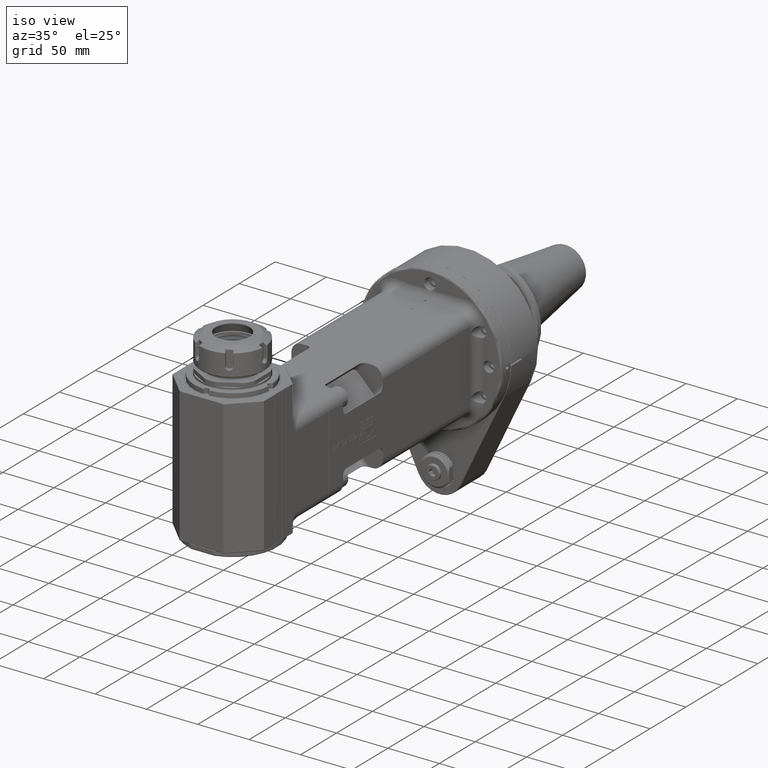
[diagram: clean part render]
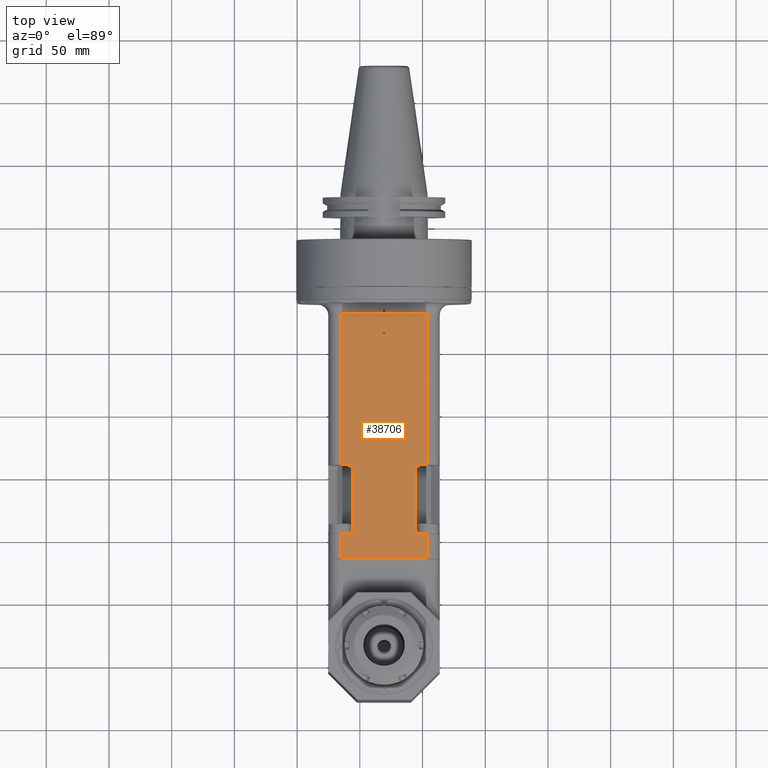
[diagram: tour spotlight — one face highlighted and labeled with its STEP entity id]
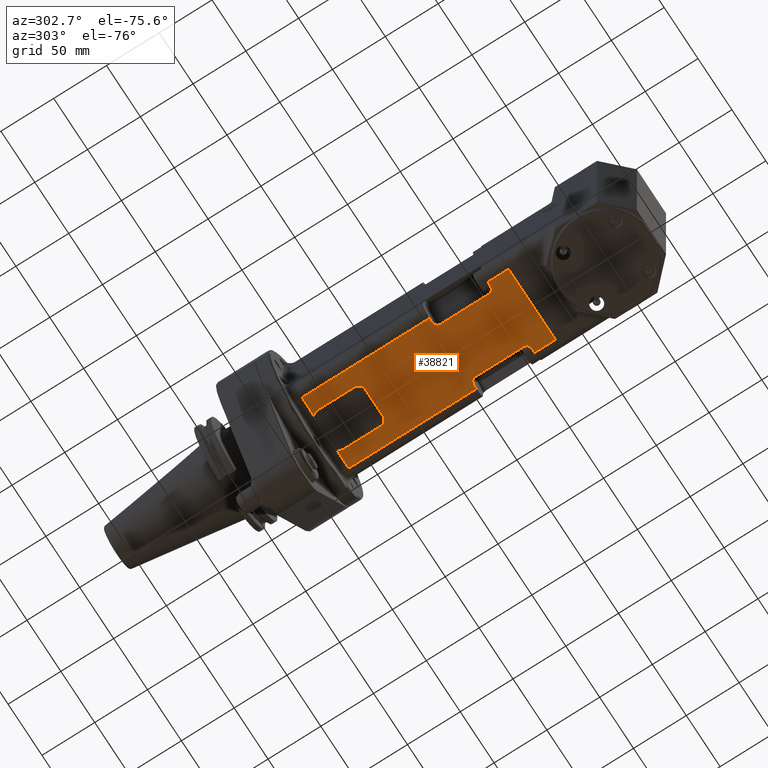
[diagram: tour spotlight — one face highlighted and labeled with its STEP entity id]
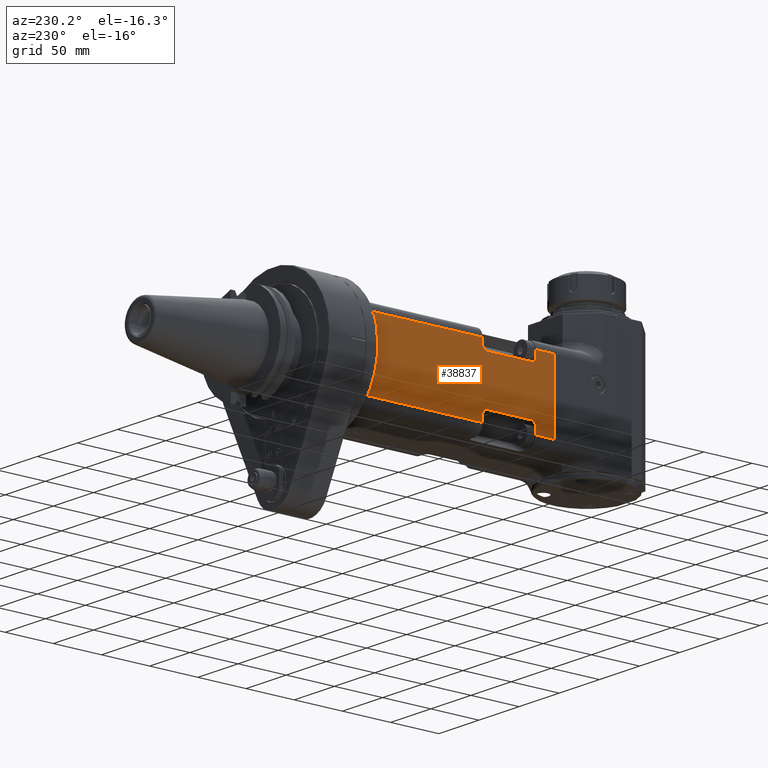
[diagram: tour spotlight — one face highlighted and labeled with its STEP entity id]
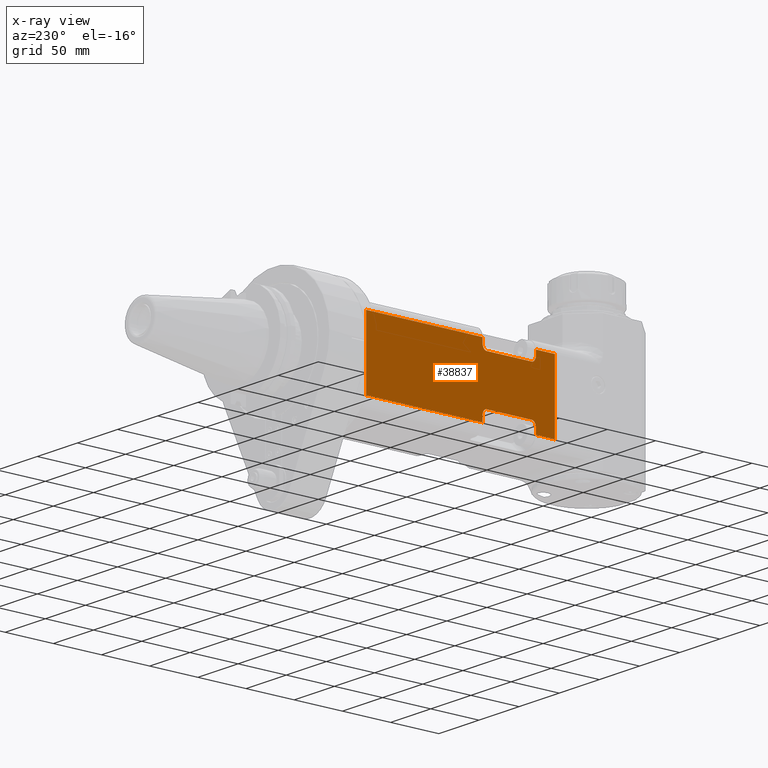
[diagram: x-ray of the same camera — body ghosted, this tour face saturated]
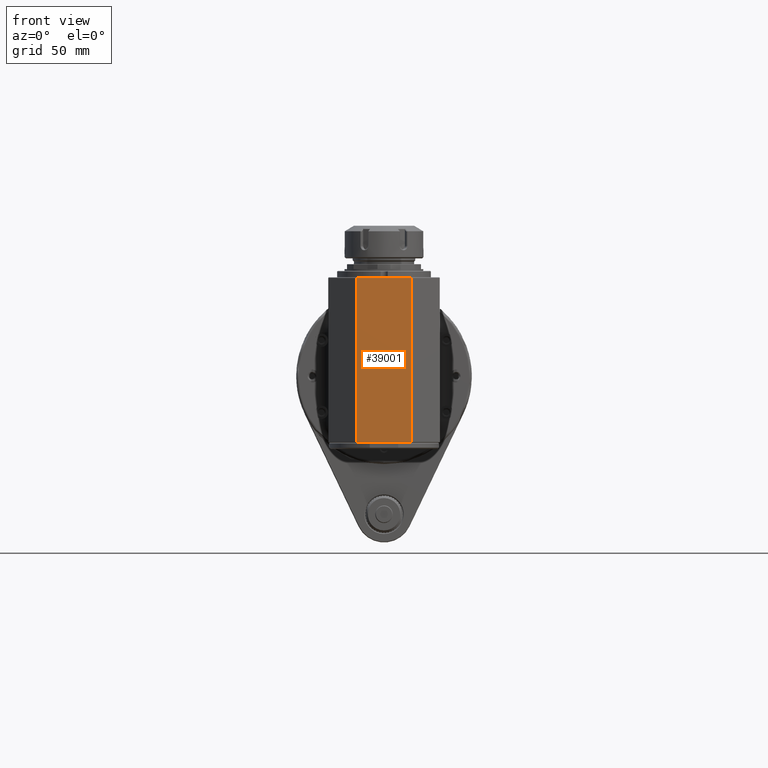
[diagram: tour spotlight — one face highlighted and labeled with its STEP entity id]
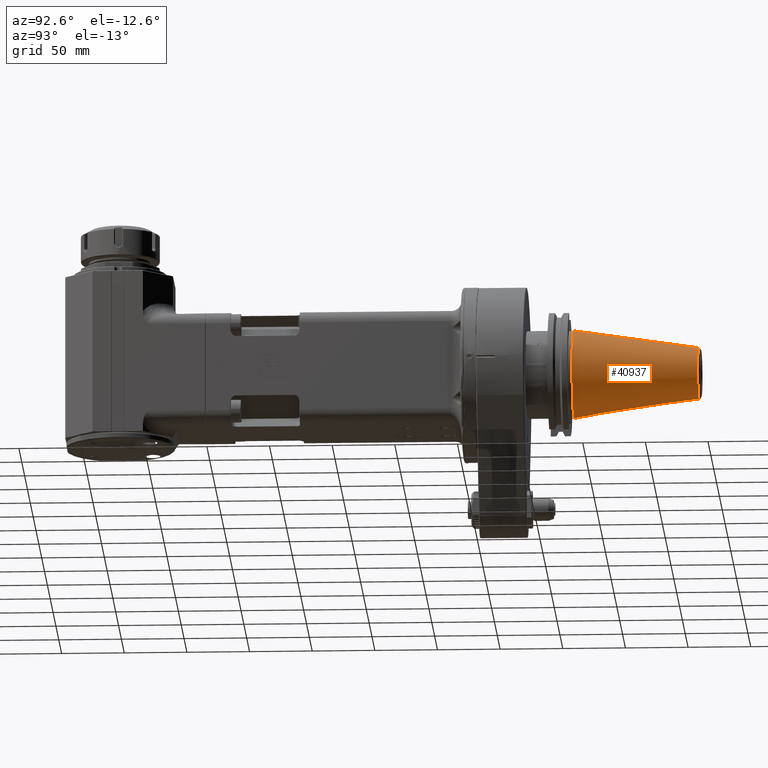
[diagram: tour spotlight — one face highlighted and labeled with its STEP entity id]
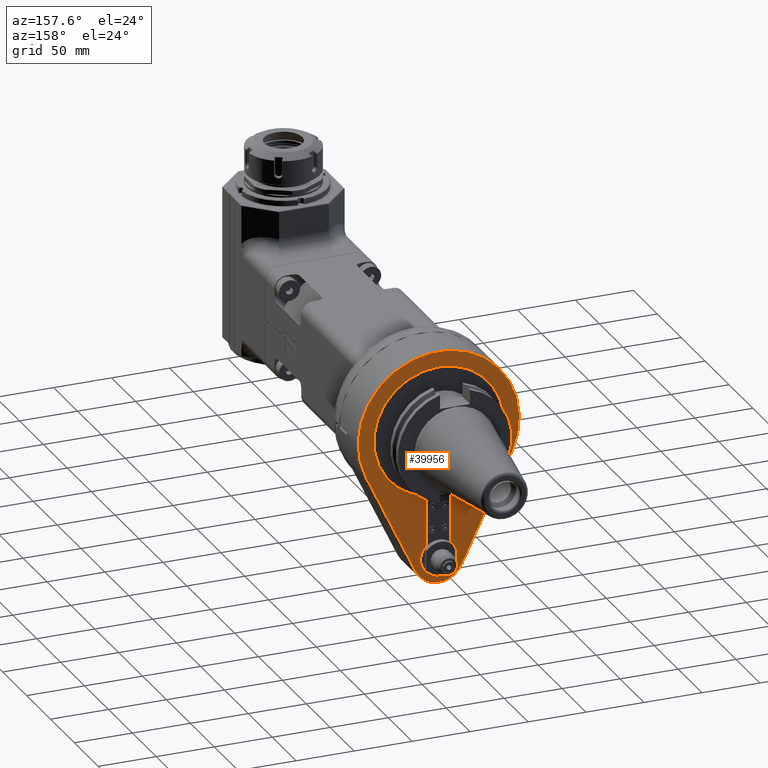
[diagram: tour spotlight — one face highlighted and labeled with its STEP entity id]
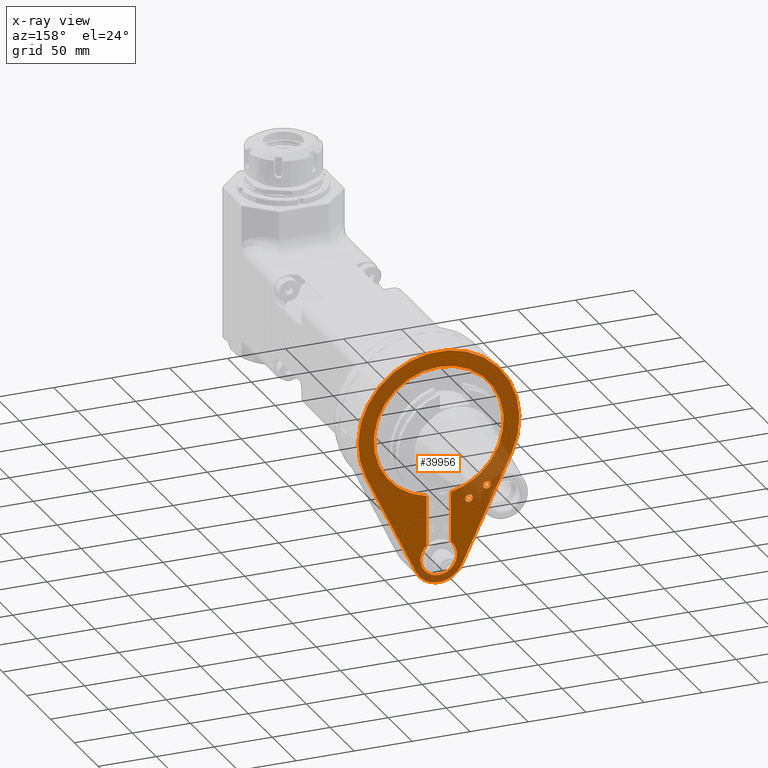
[diagram: x-ray of the same camera — body ghosted, this tour face saturated]
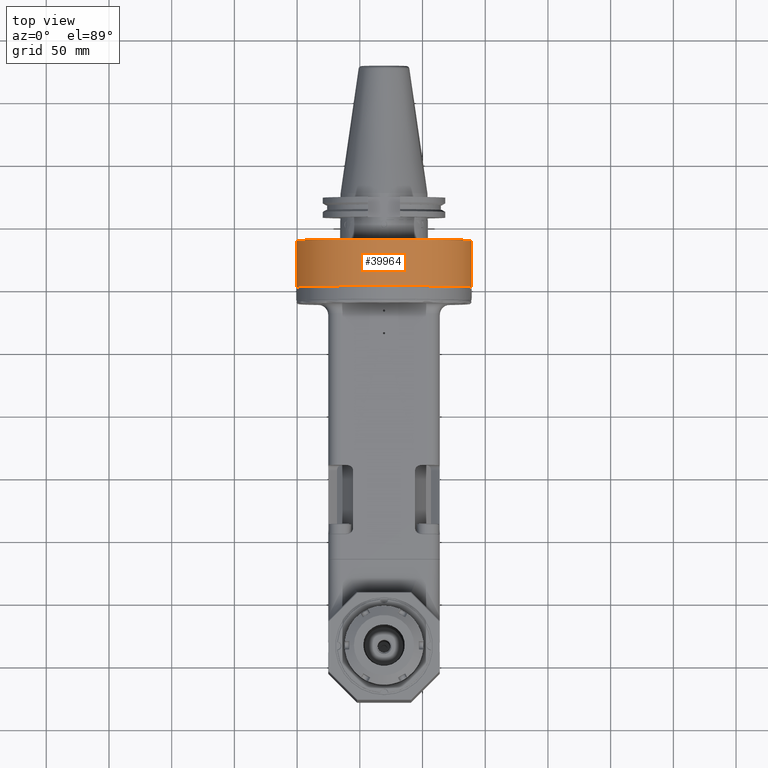
[diagram: tour spotlight — one face highlighted and labeled with its STEP entity id]
A machine part: a face-by-face anatomy tour. The part has 2402 B-rep faces; the first image is the clean iso view, then the 7 largest visible faces are spotlighted one at a time (largest first), each with its STEP entity span.

Face 1 — top view, entity #38706. In plain terms, the highlighted planar face has unit normal (0, -0, 1).
Definition (entity closure, byte-faithful):
#874=B_SPLINE_CURVE_WITH_KNOTS('',3,(#57603,#57604,#57605,#57606,#57607,
#57608,#57609,#57610,#57611,#57612,#57613,#57614,#57615,#57616,#57617,#57618,
#57619,#57620,#57621),.UNSPECIFIED.,.F.,.F.,(4,3,3,3,3,3,4),(0.,0.1666668481418,
0.3333337070498,0.5000005659577,0.6666674248656,0.8333342837736,1.),
 .UNSPECIFIED.);
#875=B_SPLINE_CURVE_WITH_KNOTS('',3,(#57625,#57626,#57627,#57628,#57629,
#57630,#57631,#57632,#57633,#57634,#57635,#57636,#57637,#57638,#57639,#57640,
#57641,#57642,#57643),.UNSPECIFIED.,.F.,.F.,(4,3,3,3,3,3,4),(0.,0.1666657375294,
0.333332592192,0.4999994468545,0.666666301517,0.8333331561796,1.),
 .UNSPECIFIED.);
#876=B_SPLINE_CURVE_WITH_KNOTS('',3,(#57655,#57656,#57657,#57658,#57659,
#57660,#57661,#57662,#57663,#57664,#57665,#57666,#57667,#57668,#57669,#57670,
#57671,#57672,#57673),.UNSPECIFIED.,.F.,.F.,(4,3,3,3,3,3,4),(0.,0.1666668481418,
0.3333337070498,0.5000005659577,0.6666674248656,0.8333342837736,1.),
 .UNSPECIFIED.);
#877=B_SPLINE_CURVE_WITH_KNOTS('',3,(#57677,#57678,#57679,#57680,#57681,
#57682,#57683,#57684,#57685,#57686,#57687,#57688,#57689,#57690,#57691,#57692,
#57693,#57694,#57695),.UNSPECIFIED.,.F.,.F.,(4,3,3,3,3,3,4),(0.,0.1666657375294,
0.333332592192,0.4999994468545,0.666666301517,0.8333331561796,1.),
 .UNSPECIFIED.);
#2171=LINE('',#57601,#5203);
#2172=LINE('',#57623,#5204);
#2173=LINE('',#57645,#5205);
#2174=LINE('',#57647,#5206);
#2175=LINE('',#57649,#5207);
#2176=LINE('',#57651,#5208);
#2177=LINE('',#57653,#5209);
#2178=LINE('',#57675,#5210);
#2179=LINE('',#57697,#5211);
#2180=LINE('',#57699,#5212);
#2181=LINE('',#57701,#5213);
#2182=LINE('',#57702,#5214);
#5203=VECTOR('',#45882,3.842135485783);
#5204=VECTOR('',#45883,47.00000437731);
#5205=VECTOR('',#45884,3.842135485783);
#5206=VECTOR('',#45885,120.8000000096);
#5207=VECTOR('',#45886,68.99999999232);
#5208=VECTOR('',#45887,120.8000000088);
#5209=VECTOR('',#45888,3.842135465951);
#5210=VECTOR('',#45889,47.00000437731);
#5211=VECTOR('',#45890,3.842135465951);
#5212=VECTOR('',#45891,19.6000000218);
#5213=VECTOR('',#45892,68.99999970749);
#5214=VECTOR('',#45893,19.60000001955);
#8751=FACE_BOUND('',#11516,.T.);
#9090=FACE_OUTER_BOUND('',#11515,.T.);
#11515=EDGE_LOOP('',(#26156,#26157,#26158,#26159,#26160,#26161,#26162,#26163,
#26164,#26165,#26166,#26167,#26168,#26169,#26170,#26171));
#11516=EDGE_LOOP('',(#26172));
#14205=CIRCLE('',#41327,1.);
#16103=VERTEX_POINT('',#57595);
#16104=VERTEX_POINT('',#57599);
#16105=VERTEX_POINT('',#57600);
#16106=VERTEX_POINT('',#57602);
#16107=VERTEX_POINT('',#57622);
#16108=VERTEX_POINT('',#57624);
#16109=VERTEX_POINT('',#57644);
#16110=VERTEX_POINT('',#57646);
#16111=VERTEX_POINT('',#57648);
#16112=VERTEX_POINT('',#57650);
#16113=VERTEX_POINT('',#57652);
#16114=VERTEX_POINT('',#57654);
#16115=VERTEX_POINT('',#57674);
#16116=VERTEX_POINT('',#57676);
#16117=VERTEX_POINT('',#57696);
#16118=VERTEX_POINT('',#57698);
#16119=VERTEX_POINT('',#57700);
#20002=EDGE_CURVE('',#16103,#16103,#14205,.T.);
#20003=EDGE_CURVE('',#16104,#16105,#2171,.T.);
#20004=EDGE_CURVE('',#16105,#16106,#874,.T.);
#20005=EDGE_CURVE('',#16106,#16107,#2172,.T.);
#20006=EDGE_CURVE('',#16107,#16108,#875,.T.);
#20007=EDGE_CURVE('',#16108,#16109,#2173,.T.);
#20008=EDGE_CURVE('',#16109,#16110,#2174,.T.);
#20009=EDGE_CURVE('',#16110,#16111,#2175,.T.);
#20010=EDGE_CURVE('',#16112,#16111,#2176,.T.);
#20011=EDGE_CURVE('',#16112,#16113,#2177,.T.);
#20012=EDGE_CURVE('',#16113,#16114,#876,.T.);
#20013=EDGE_CURVE('',#16114,#16115,#2178,.T.);
#20014=EDGE_CURVE('',#16115,#16116,#877,.T.);
#20015=EDGE_CURVE('',#16116,#16117,#2179,.T.);
#20016=EDGE_CURVE('',#16118,#16117,#2180,.T.);
#20017=EDGE_CURVE('',#16119,#16118,#2181,.T.);
#20018=EDGE_CURVE('',#16119,#16104,#2182,.T.);
#26156=ORIENTED_EDGE('',*,*,#20003,.T.);
#26157=ORIENTED_EDGE('',*,*,#20004,.T.);
#26158=ORIENTED_EDGE('',*,*,#20005,.T.);
#26159=ORIENTED_EDGE('',*,*,#20006,.T.);
#26160=ORIENTED_EDGE('',*,*,#20007,.T.);
#26161=ORIENTED_EDGE('',*,*,#20008,.T.);
#26162=ORIENTED_EDGE('',*,*,#20009,.T.);
#26163=ORIENTED_EDGE('',*,*,#20010,.F.);
#26164=ORIENTED_EDGE('',*,*,#20011,.T.);
#26165=ORIENTED_EDGE('',*,*,#20012,.T.);
#26166=ORIENTED_EDGE('',*,*,#20013,.T.);
#26167=ORIENTED_EDGE('',*,*,#20014,.T.);
#26168=ORIENTED_EDGE('',*,*,#20015,.T.);
#26169=ORIENTED_EDGE('',*,*,#20016,.F.);
#26170=ORIENTED_EDGE('',*,*,#20017,.F.);
#26171=ORIENTED_EDGE('',*,*,#20018,.T.);
#26172=ORIENTED_EDGE('',*,*,#20002,.F.);
#37676=PLANE('',#41328);
#38706=ADVANCED_FACE('',(#9090,#8751),#37676,.T.);
#41327=AXIS2_PLACEMENT_3D('',#57597,#45878,#45879);
#41328=AXIS2_PLACEMENT_3D('',#57598,#45880,#45881);
#45878=DIRECTION('center_axis',(0.,0.,1.));
#45879=DIRECTION('ref_axis',(-1.,0.,0.));
#45880=DIRECTION('center_axis',(0.,0.,1.));
#45881=DIRECTION('ref_axis',(-1.,0.,0.));
#45882=DIRECTION('',(-1.,-2.503293226375E-9,2.503295075718E-9));
#45883=DIRECTION('',(0.,1.,0.));
#45884=DIRECTION('',(1.,-2.503300623748E-9,-2.503295075718E-9));
#45885=DIRECTION('',(1.417556815012E-9,1.,7.961931334349E-11));
#45886=DIRECTION('',(-1.,0.,0.));
#45887=DIRECTION('',(-1.600004779029E-9,1.,7.311090658026E-11));
#45888=DIRECTION('',(1.,2.298674502784E-9,2.298667105411E-9));
#45889=DIRECTION('',(0.,-1.,0.));
#45890=DIRECTION('',(-1.,2.298659708037E-9,-2.298665256067E-9));
#45891=DIRECTION('',(5.550243977058E-9,1.,2.109528875765E-10));
#45892=DIRECTION('',(-1.,-4.395891077204E-11,-4.395870481763E-11));
#45893=DIRECTION('',(1.484325223609E-9,1.,1.608726755645E-11));
#57595=CARTESIAN_POINT('',(1.,-37.,45.));
#57597=CARTESIAN_POINT('Origin',(0.,-37.,45.));
#57598=CARTESIAN_POINT('Origin',(44.5,-217.,45.));
#57599=CARTESIAN_POINT('',(34.4999998293221,-197.199999995012,44.999999993814));
#57600=CARTESIAN_POINT('',(30.65786433803,-197.2,45.));
#57601=CARTESIAN_POINT('',(34.49999982382,-197.1999999904,44.99999999038));
#57602=CARTESIAN_POINT('',(24.7181674143,-193.0000021886,45.));
#57603=CARTESIAN_POINT('Ctrl Pts',(30.65786433803,-197.200000000008,44.9999999999918));
#57604=CARTESIAN_POINT('Ctrl Pts',(30.0659526682493,-197.199999993941,44.9999999969601));
#57605=CARTESIAN_POINT('Ctrl Pts',(29.4464847479176,-197.129860309304,45.0000000005456));
#57606=CARTESIAN_POINT('Ctrl Pts',(28.8923058707809,-197.010162288716,44.9999999999808));
#57607=CARTESIAN_POINT('Ctrl Pts',(28.3381269578458,-196.890464260397,44.999999999416));
#57608=CARTESIAN_POINT('Ctrl Pts',(27.8492370918518,-196.721207895294,44.9999999916774));
#57609=CARTESIAN_POINT('Ctrl Pts',(27.4052496018091,-196.514292043134,44.999999999991));
#57610=CARTESIAN_POINT('Ctrl Pts',(26.9612621117668,-196.307376190975,45.0000000083046));
#57611=CARTESIAN_POINT('Ctrl Pts',(26.5621770075774,-196.062800857451,45.0000000276106));
#57612=CARTESIAN_POINT('Ctrl Pts',(26.219644418924,-195.79125452172,44.9999999999976));
#57613=CARTESIAN_POINT('Ctrl Pts',(25.8771118302707,-195.519708185989,44.9999999723847));
#57614=CARTESIAN_POINT('Ctrl Pts',(25.5911317542986,-195.221190790443,44.999999928992));
#57615=CARTESIAN_POINT('Ctrl Pts',(25.3659177510943,-194.907262556187,45.0000000000005));
#57616=CARTESIAN_POINT('Ctrl Pts',(25.1407037478899,-194.593334321931,45.0000000710091));
#57617=CARTESIAN_POINT('Ctrl Pts',(24.9762556597888,-194.263995459405,45.0000001337592));
#57618=CARTESIAN_POINT('Ctrl Pts',(24.8706213108077,-193.945467530201,44.9999999999962));
#57619=CARTESIAN_POINT('Ctrl Pts',(24.7649876860642,-193.62694178485,44.9999998662341));
#57620=CARTESIAN_POINT('Ctrl Pts',(24.7181676909738,-193.319226519,44.999999848677));
#57621=CARTESIAN_POINT('Ctrl Pts',(24.7181674143019,-193.0000021886,45.0000000000008));
#57622=CARTESIAN_POINT('',(24.7181674143,-145.9999978113,45.));
#57623=CARTESIAN_POINT('',(24.7181674143,-193.0000021886,45.));
#57624=CARTESIAN_POINT('',(30.65786433803,-141.8,45.));
#57625=CARTESIAN_POINT('Ctrl Pts',(24.7181674143041,-145.9999978113,45.0000000000017));
#57626=CARTESIAN_POINT('Ctrl Pts',(24.7181677062902,-145.6734689929,44.9999998403083));
#57627=CARTESIAN_POINT('Ctrl Pts',(24.7687082161459,-145.355735502262,44.9999998638394));
#57628=CARTESIAN_POINT('Ctrl Pts',(24.8775856636567,-145.033465467637,45.0000000000025));
#57629=CARTESIAN_POINT('Ctrl Pts',(24.9864638409553,-144.711193272889,45.0000001361665));
#57630=CARTESIAN_POINT('Ctrl Pts',(25.1536790444932,-144.384384156162,45.0000000718012));
#57631=CARTESIAN_POINT('Ctrl Pts',(25.3800152950135,-144.073304762609,45.000000000003));
#57632=CARTESIAN_POINT('Ctrl Pts',(25.6063515455337,-143.762225369056,44.9999999282047));
#57633=CARTESIAN_POINT('Ctrl Pts',(25.8918089981672,-143.466875911818,44.9999999722783));
#57634=CARTESIAN_POINT('Ctrl Pts',(26.2334833639518,-143.197781891265,44.9999999999986));
#57635=CARTESIAN_POINT('Ctrl Pts',(26.5751577297363,-142.928687870711,45.0000000277189));
#57636=CARTESIAN_POINT('Ctrl Pts',(26.9730490122267,-142.685849230159,45.0000000083335));
#57637=CARTESIAN_POINT('Ctrl Pts',(27.4173677743722,-142.480114932762,45.0000000000054));
#57638=CARTESIAN_POINT('Ctrl Pts',(27.8616865365179,-142.274380635366,44.9999999916772));
#57639=CARTESIAN_POINT('Ctrl Pts',(28.3524327683985,-142.105750686741,44.9999999994368));
#57640=CARTESIAN_POINT('Ctrl Pts',(28.9045365543107,-141.987155525758,45.0000000000166));
#57641=CARTESIAN_POINT('Ctrl Pts',(29.4566403043068,-141.868560372489,45.0000000005963));
#57642=CARTESIAN_POINT('Ctrl Pts',(30.0701016050112,-141.800000005941,44.9999999970404));
#57643=CARTESIAN_POINT('Ctrl Pts',(30.65786433803,-141.800000000015,45.0000000000151));
#57644=CARTESIAN_POINT('',(34.49999982382,-141.800000007205,44.9999999969982));
#57645=CARTESIAN_POINT('',(30.65786433803,-141.8,45.));
#57646=CARTESIAN_POINT('',(34.4999999981478,-21.,44.9999999999995));
#57647=CARTESIAN_POINT('',(34.49999982382,-141.8000000096,44.99999999038));
#57648=CARTESIAN_POINT('',(-34.4999999993151,-21.,45.0000000000005));
#57649=CARTESIAN_POINT('',(34.49999999506,-21.,45.));
#57650=CARTESIAN_POINT('',(-34.4999998101056,-141.800000004572,44.9999999943199));
#57651=CARTESIAN_POINT('',(-34.49999980398,-141.8000000088,44.99999999117));
#57652=CARTESIAN_POINT('',(-30.65786433803,-141.8,45.));
#57653=CARTESIAN_POINT('',(-34.49999980398,-141.8000000088,44.99999999117));
#57654=CARTESIAN_POINT('',(-24.7181674143,-145.9999978114,45.));
#57655=CARTESIAN_POINT('Ctrl Pts',(-30.65786433803,-141.799999999992,44.9999999999918));
#57656=CARTESIAN_POINT('Ctrl Pts',(-30.0659526682493,-141.80000000606,44.9999999969601));
#57657=CARTESIAN_POINT('Ctrl Pts',(-29.4464847479176,-141.870139690696,
45.0000000005456));
#57658=CARTESIAN_POINT('Ctrl Pts',(-28.8923058707809,-141.989837711284,
44.9999999999808));
#57659=CARTESIAN_POINT('Ctrl Pts',(-28.3381269578458,-142.109535739603,
44.999999999416));
#57660=CARTESIAN_POINT('Ctrl Pts',(-27.8492370918518,-142.278792104706,
44.9999999916774));
#57661=CARTESIAN_POINT('Ctrl Pts',(-27.4052496018091,-142.485707956866,
44.999999999991));
#57662=CARTESIAN_POINT('Ctrl Pts',(-26.9612621117668,-142.692623809025,
45.0000000083046));
#57663=CARTESIAN_POINT('Ctrl Pts',(-26.5621770075774,-142.937199142549,
45.0000000276106));
#57664=CARTESIAN_POINT('Ctrl Pts',(-26.219644418924,-143.20874547828,44.9999999999976));
#57665=CARTESIAN_POINT('Ctrl Pts',(-25.8771118302706,-143.480291814011,
44.9999999723847));
#57666=CARTESIAN_POINT('Ctrl Pts',(-25.5911317542985,-143.778809209557,
44.999999928992));
#57667=CARTESIAN_POINT('Ctrl Pts',(-25.3659177510943,-144.092737443813,
45.0000000000005));
#57668=CARTESIAN_POINT('Ctrl Pts',(-25.1407037478899,-144.406665678069,
45.0000000710091));
#57669=CARTESIAN_POINT('Ctrl Pts',(-24.9762556597888,-144.736004540595,
45.0000001337592));
#57670=CARTESIAN_POINT('Ctrl Pts',(-24.8706213108077,-145.054532469799,
44.9999999999962));
#57671=CARTESIAN_POINT('Ctrl Pts',(-24.7649876860643,-145.37305821515,44.9999998662341));
#57672=CARTESIAN_POINT('Ctrl Pts',(-24.7181676909738,-145.680773481,44.9999998486769));
#57673=CARTESIAN_POINT('Ctrl Pts',(-24.7181674143019,-145.9999978114,45.0000000000008));
#57674=CARTESIAN_POINT('',(-24.7181674143,-193.0000021887,45.));
#57675=CARTESIAN_POINT('',(-24.7181674143,-145.9999978114,45.));
#57676=CARTESIAN_POINT('',(-30.65786433803,-197.2,45.));
#57677=CARTESIAN_POINT('Ctrl Pts',(-24.7181674143041,-193.0000021887,45.0000000000017));
#57678=CARTESIAN_POINT('Ctrl Pts',(-24.7181677062902,-193.3265310071,44.9999998403083));
#57679=CARTESIAN_POINT('Ctrl Pts',(-24.7687082161459,-193.644264497738,
44.9999998638395));
#57680=CARTESIAN_POINT('Ctrl Pts',(-24.8775856636578,-193.966534532363,
45.000000000003));
#57681=CARTESIAN_POINT('Ctrl Pts',(-24.9864638409575,-194.28880672711,45.0000001361675));
#57682=CARTESIAN_POINT('Ctrl Pts',(-25.1536790444968,-194.615615843836,
45.0000000718031));
#57683=CARTESIAN_POINT('Ctrl Pts',(-25.3800152950166,-194.926695237389,
45.0000000000048));
#57684=CARTESIAN_POINT('Ctrl Pts',(-25.6063515455363,-195.237774630941,
44.9999999282065));
#57685=CARTESIAN_POINT('Ctrl Pts',(-25.8918089981682,-195.533124088181,
44.9999999722791));
#57686=CARTESIAN_POINT('Ctrl Pts',(-26.2334833639522,-195.802218108735,
44.999999999999));
#57687=CARTESIAN_POINT('Ctrl Pts',(-26.5751577297362,-196.071312129289,
45.000000027719));
#57688=CARTESIAN_POINT('Ctrl Pts',(-26.9730490122267,-196.314150769841,
45.0000000083335));
#57689=CARTESIAN_POINT('Ctrl Pts',(-27.4173677743721,-196.519885067238,
45.0000000000053));
#57690=CARTESIAN_POINT('Ctrl Pts',(-27.8616865365179,-196.725619364634,
44.9999999916772));
#57691=CARTESIAN_POINT('Ctrl Pts',(-28.3524327683985,-196.894249313259,
44.9999999994368));
#57692=CARTESIAN_POINT('Ctrl Pts',(-28.9045365543107,-197.012844474242,
45.0000000000166));
#57693=CARTESIAN_POINT('Ctrl Pts',(-29.4566403043068,-197.131439627511,
45.0000000005963));
#57694=CARTESIAN_POINT('Ctrl Pts',(-30.0701016050112,-197.199999994059,
44.9999999970404));
#57695=CARTESIAN_POINT('Ctrl Pts',(-30.65786433803,-197.199999999985,45.000000000015));
#57696=CARTESIAN_POINT('',(-34.49999980398,-197.199999993393,44.9999999972473));
#57697=CARTESIAN_POINT('',(-30.65786433803,-197.2,45.));
#57698=CARTESIAN_POINT('',(-34.49999991277,-216.800000009743,44.99999999594));
#57699=CARTESIAN_POINT('',(-34.49999991277,-216.800000013,44.99999998703));
#57700=CARTESIAN_POINT('',(34.4999998011366,-216.800000005149,44.9999999936161));
#57701=CARTESIAN_POINT('',(34.49999979472,-216.8000000099,44.99999999007));
#57702=CARTESIAN_POINT('',(34.49999979472,-216.8000000099,44.99999999007));

Face 2 — auxiliary view, entity #38821. In plain terms, the highlighted planar face has unit normal (-0, 0, -1).
Definition (entity closure, byte-faithful):
#970=B_SPLINE_CURVE_WITH_KNOTS('',3,(#60145,#60146,#60147,#60148,#60149,
#60150,#60151,#60152,#60153,#60154,#60155,#60156,#60157,#60158,#60159,#60160,
#60161,#60162,#60163),.UNSPECIFIED.,.F.,.F.,(4,3,3,3,3,3,4),(0.,0.1666668481418,
0.3333337070498,0.5000005659577,0.6666674248656,0.8333342837736,1.),
 .UNSPECIFIED.);
#971=B_SPLINE_CURVE_WITH_KNOTS('',3,(#60167,#60168,#60169,#60170,#60171,
#60172,#60173,#60174,#60175,#60176,#60177,#60178,#60179,#60180,#60181,#60182,
#60183,#60184,#60185),.UNSPECIFIED.,.F.,.F.,(4,3,3,3,3,3,4),(0.,0.1666657375294,
0.333332592192,0.4999994468545,0.666666301517,0.8333331561796,1.),
 .UNSPECIFIED.);
#972=B_SPLINE_CURVE_WITH_KNOTS('',3,(#60197,#60198,#60199,#60200,#60201,
#60202,#60203,#60204,#60205,#60206,#60207,#60208,#60209,#60210,#60211,#60212,
#60213,#60214,#60215),.UNSPECIFIED.,.F.,.F.,(4,3,3,3,3,3,4),(0.,0.1666668481418,
0.3333337070498,0.5000005659577,0.6666674248656,0.8333342837736,1.),
 .UNSPECIFIED.);
#973=B_SPLINE_CURVE_WITH_KNOTS('',3,(#60219,#60220,#60221,#60222,#60223,
#60224,#60225,#60226,#60227,#60228,#60229,#60230,#60231,#60232,#60233,#60234,
#60235,#60236,#60237),.UNSPECIFIED.,.F.,.F.,(4,3,3,3,3,3,4),(0.,0.1666657375294,
0.333332592192,0.4999994468545,0.666666301517,0.8333331561796,1.),
 .UNSPECIFIED.);
#2364=LINE('',#59859,#5396);
#2365=LINE('',#59967,#5397);
#2372=LINE('',#60136,#5404);
#2375=LINE('',#60143,#5407);
#2376=LINE('',#60165,#5408);
#2377=LINE('',#60187,#5409);
#2378=LINE('',#60189,#5410);
#2379=LINE('',#60191,#5411);
#2380=LINE('',#60193,#5412);
#2381=LINE('',#60195,#5413);
#2382=LINE('',#60217,#5414);
#2383=LINE('',#60239,#5415);
#2384=LINE('',#60240,#5416);
#2385=LINE('',#60244,#5417);
#2386=LINE('',#60248,#5418);
#2387=LINE('',#60250,#5419);
#5396=VECTOR('',#46633,17.83393965976);
#5397=VECTOR('',#46636,17.83393926472);
#5404=VECTOR('',#46653,35.00000002668);
#5407=VECTOR('',#46658,2.842135465951);
#5408=VECTOR('',#46659,47.00000437731);
#5409=VECTOR('',#46660,2.842135465951);
#5410=VECTOR('',#46661,19.6000000218);
#5411=VECTOR('',#46662,68.99999970749);
#5412=VECTOR('',#46663,19.60000001955);
#5413=VECTOR('',#46664,2.842135485783);
#5414=VECTOR('',#46665,47.00000437731);
#5415=VECTOR('',#46666,2.842135485783);
#5416=VECTOR('',#46667,120.8000000096);
#5417=VECTOR('',#46670,26.00000008248);
#5418=VECTOR('',#46673,35.00000017043);
#5419=VECTOR('',#46676,120.8000000088);
#9205=FACE_OUTER_BOUND('',#11670,.T.);
#11670=EDGE_LOOP('',(#26894,#26895,#26896,#26897,#26898,#26899,#26900,#26901,
#26902,#26903,#26904,#26905,#26906,#26907,#26908,#26909,#26910,#26911,#26912,
#26913,#26914,#26915,#26916,#26917));
#14325=CIRCLE('',#41611,6.2);
#14327=CIRCLE('',#41615,6.2);
#14328=CIRCLE('',#41616,6.2);
#14329=CIRCLE('',#41617,6.2);
#16461=VERTEX_POINT('',#59727);
#16462=VERTEX_POINT('',#59731);
#16465=VERTEX_POINT('',#59793);
#16466=VERTEX_POINT('',#59858);
#16471=VERTEX_POINT('',#60129);
#16473=VERTEX_POINT('',#60135);
#16475=VERTEX_POINT('',#60141);
#16476=VERTEX_POINT('',#60142);
#16477=VERTEX_POINT('',#60144);
#16478=VERTEX_POINT('',#60164);
#16479=VERTEX_POINT('',#60166);
#16480=VERTEX_POINT('',#60186);
#16481=VERTEX_POINT('',#60188);
#16482=VERTEX_POINT('',#60190);
#16483=VERTEX_POINT('',#60192);
#16484=VERTEX_POINT('',#60194);
#16485=VERTEX_POINT('',#60196);
#16486=VERTEX_POINT('',#60216);
#16487=VERTEX_POINT('',#60218);
#16488=VERTEX_POINT('',#60238);
#16489=VERTEX_POINT('',#60241);
#16490=VERTEX_POINT('',#60243);
#16491=VERTEX_POINT('',#60245);
#16492=VERTEX_POINT('',#60247);
#20466=EDGE_CURVE('',#16466,#16465,#2364,.T.);
#20469=EDGE_CURVE('',#16462,#16461,#2365,.T.);
#20478=EDGE_CURVE('',#16465,#16471,#14325,.T.);
#20480=EDGE_CURVE('',#16471,#16473,#2372,.T.);
#20483=EDGE_CURVE('',#16475,#16476,#2375,.T.);
#20484=EDGE_CURVE('',#16476,#16477,#970,.T.);
#20485=EDGE_CURVE('',#16477,#16478,#2376,.T.);
#20486=EDGE_CURVE('',#16478,#16479,#971,.T.);
#20487=EDGE_CURVE('',#16479,#16480,#2377,.T.);
#20488=EDGE_CURVE('',#16481,#16480,#2378,.T.);
#20489=EDGE_CURVE('',#16482,#16481,#2379,.T.);
#20490=EDGE_CURVE('',#16482,#16483,#2380,.T.);
#20491=EDGE_CURVE('',#16483,#16484,#2381,.T.);
#20492=EDGE_CURVE('',#16484,#16485,#972,.T.);
#20493=EDGE_CURVE('',#16485,#16486,#2382,.T.);
#20494=EDGE_CURVE('',#16486,#16487,#973,.T.);
#20495=EDGE_CURVE('',#16487,#16488,#2383,.T.);
#20496=EDGE_CURVE('',#16488,#16466,#2384,.T.);
#20497=EDGE_CURVE('',#16473,#16489,#14327,.T.);
#20498=EDGE_CURVE('',#16489,#16490,#2385,.T.);
#20499=EDGE_CURVE('',#16490,#16491,#14328,.T.);
#20500=EDGE_CURVE('',#16491,#16492,#2386,.T.);
#20501=EDGE_CURVE('',#16492,#16462,#14329,.T.);
#20502=EDGE_CURVE('',#16475,#16461,#2387,.T.);
#26894=ORIENTED_EDGE('',*,*,#20483,.T.);
#26895=ORIENTED_EDGE('',*,*,#20484,.T.);
#26896=ORIENTED_EDGE('',*,*,#20485,.T.);
#26897=ORIENTED_EDGE('',*,*,#20486,.T.);
#26898=ORIENTED_EDGE('',*,*,#20487,.T.);
#26899=ORIENTED_EDGE('',*,*,#20488,.F.);
#26900=ORIENTED_EDGE('',*,*,#20489,.F.);
#26901=ORIENTED_EDGE('',*,*,#20490,.T.);
#26902=ORIENTED_EDGE('',*,*,#20491,.T.);
#26903=ORIENTED_EDGE('',*,*,#20492,.T.);
#26904=ORIENTED_EDGE('',*,*,#20493,.T.);
#26905=ORIENTED_EDGE('',*,*,#20494,.T.);
#26906=ORIENTED_EDGE('',*,*,#20495,.T.);
#26907=ORIENTED_EDGE('',*,*,#20496,.T.);
#26908=ORIENTED_EDGE('',*,*,#20466,.T.);
#26909=ORIENTED_EDGE('',*,*,#20478,.T.);
#26910=ORIENTED_EDGE('',*,*,#20480,.T.);
#26911=ORIENTED_EDGE('',*,*,#20497,.T.);
#26912=ORIENTED_EDGE('',*,*,#20498,.T.);
#26913=ORIENTED_EDGE('',*,*,#20499,.T.);
#26914=ORIENTED_EDGE('',*,*,#20500,.T.);
#26915=ORIENTED_EDGE('',*,*,#20501,.T.);
#26916=ORIENTED_EDGE('',*,*,#20469,.T.);
#26917=ORIENTED_EDGE('',*,*,#20502,.F.);
#37715=PLANE('',#41614);
#38821=ADVANCED_FACE('',(#9205),#37715,.T.);
#41611=AXIS2_PLACEMENT_3D('',#60132,#46647,#46648);
#41614=AXIS2_PLACEMENT_3D('',#60140,#46656,#46657);
#41615=AXIS2_PLACEMENT_3D('',#60242,#46668,#46669);
#41616=AXIS2_PLACEMENT_3D('',#60246,#46671,#46672);
#41617=AXIS2_PLACEMENT_3D('',#60249,#46674,#46675);
#46633=DIRECTION('',(1.,7.491485305802E-9,8.800584045587E-10));
#46636=DIRECTION('',(1.,8.510925730779E-9,-9.134760392399E-10));
#46647=DIRECTION('center_axis',(0.,0.,1.));
#46648=DIRECTION('ref_axis',(-0.59130008967172,0.806451612903227,0.));
#46653=DIRECTION('',(3.168152721877E-10,-1.,3.168143586327E-10));
#46656=DIRECTION('center_axis',(0.,0.,-1.));
#46657=DIRECTION('ref_axis',(1.,0.,0.));
#46658=DIRECTION('',(-1.,3.107448788391E-9,-3.107443788329E-9));
#46659=DIRECTION('',(0.,-1.,0.));
#46660=DIRECTION('',(1.,3.107438788266E-9,3.10744628836E-9));
#46661=DIRECTION('',(-5.550243977058E-9,1.,-2.109528875765E-10));
#46662=DIRECTION('',(1.,-4.395891077204E-11,4.395891077204E-11));
#46663=DIRECTION('',(-1.484325223609E-9,1.,-1.608690503464E-11));
#46664=DIRECTION('',(1.,-3.384072217699E-9,-3.384074717731E-9));
#46665=DIRECTION('',(0.,1.,0.));
#46666=DIRECTION('',(-1.,-3.384082217824E-9,3.384077217762E-9));
#46667=DIRECTION('',(-1.417556815012E-9,1.,-7.961925452372E-11));
#46668=DIRECTION('center_axis',(0.,0.,1.));
#46669=DIRECTION('ref_axis',(-1.,0.,0.));
#46670=DIRECTION('',(1.,6.603948136605E-11,6.604112108005E-11));
#46671=DIRECTION('center_axis',(0.,0.,1.));
#46672=DIRECTION('ref_axis',(2.349375174691E-14,-1.,0.));
#46673=DIRECTION('',(-6.233427965641E-10,1.,6.233441161435E-10));
#46674=DIRECTION('center_axis',(0.,0.,1.));
#46675=DIRECTION('ref_axis',(1.,0.,0.));
#46676=DIRECTION('',(1.600004720209E-9,1.,-7.311084776049E-11));
#59727=CARTESIAN_POINT('',(34.4999999993151,-20.9999999999992,-46.0000000000007));
#59731=CARTESIAN_POINT('',(16.6660607372511,-21.0000001466382,-45.9999999885633));
#59793=CARTESIAN_POINT('',(-16.6660603415307,-20.9999998602131,-45.9999999893749));
#59858=CARTESIAN_POINT('',(-34.4999999981478,-21.,-45.9999999999995));
#59859=CARTESIAN_POINT('',(-34.49999999506,-21.,-46.));
#59967=CARTESIAN_POINT('',(16.66606073254,-21.00000015178,-45.99999998371));
#60129=CARTESIAN_POINT('',(-19.1999999976494,-25.99999993419,-45.9999999976494));
#60132=CARTESIAN_POINT('Origin',(-13.,-26.,-46.));
#60135=CARTESIAN_POINT('',(-19.1999999923118,-60.9999999685914,-45.9999999923119));
#60136=CARTESIAN_POINT('',(-19.19999999552,-25.99999993419,-45.99999999552));
#60140=CARTESIAN_POINT('Origin',(-44.5,-217.,-46.));
#60141=CARTESIAN_POINT('',(34.49999980398,-141.800000006607,-45.9999999972473));
#60142=CARTESIAN_POINT('',(31.65786433803,-141.8,-46.));
#60143=CARTESIAN_POINT('',(34.49999980398,-141.8000000088,-45.99999999117));
#60144=CARTESIAN_POINT('',(25.7181674143,-145.9999978114,-46.));
#60145=CARTESIAN_POINT('Ctrl Pts',(31.65786433803,-141.799999999992,-45.9999999999918));
#60146=CARTESIAN_POINT('Ctrl Pts',(31.0659526682493,-141.80000000606,-45.9999999969601));
#60147=CARTESIAN_POINT('Ctrl Pts',(30.4464847479176,-141.870139690696,-46.0000000005456));
#60148=CARTESIAN_POINT('Ctrl Pts',(29.8923058707809,-141.989837711284,-45.9999999999808));
#60149=CARTESIAN_POINT('Ctrl Pts',(29.3381269578458,-142.109535739603,-45.999999999416));
#60150=CARTESIAN_POINT('Ctrl Pts',(28.8492370918518,-142.278792104706,-45.9999999916774));
#60151=CARTESIAN_POINT('Ctrl Pts',(28.4052496018091,-142.485707956866,-45.999999999991));
#60152=CARTESIAN_POINT('Ctrl Pts',(27.9612621117668,-142.692623809025,-46.0000000083046));
#60153=CARTESIAN_POINT('Ctrl Pts',(27.5621770075774,-142.937199142549,-46.0000000276106));
#60154=CARTESIAN_POINT('Ctrl Pts',(27.219644418924,-143.20874547828,-45.9999999999976));
#60155=CARTESIAN_POINT('Ctrl Pts',(26.8771118302706,-143.480291814011,-45.9999999723847));
#60156=CARTESIAN_POINT('Ctrl Pts',(26.5911317542985,-143.778809209557,-45.999999928992));
#60157=CARTESIAN_POINT('Ctrl Pts',(26.3659177510943,-144.092737443813,-46.0000000000005));
#60158=CARTESIAN_POINT('Ctrl Pts',(26.1407037478899,-144.406665678069,-46.0000000710091));
#60159=CARTESIAN_POINT('Ctrl Pts',(25.9762556597888,-144.736004540595,-46.0000001337592));
#60160=CARTESIAN_POINT('Ctrl Pts',(25.8706213108077,-145.054532469799,-45.9999999999962));
#60161=CARTESIAN_POINT('Ctrl Pts',(25.7649876860642,-145.37305821515,-45.9999998662341));
#60162=CARTESIAN_POINT('Ctrl Pts',(25.7181676909738,-145.680773481,-45.9999998486769));
#60163=CARTESIAN_POINT('Ctrl Pts',(25.7181674143019,-145.9999978114,-46.0000000000008));
#60164=CARTESIAN_POINT('',(25.7181674143,-193.0000021887,-46.));
#60165=CARTESIAN_POINT('',(25.7181674143,-145.9999978114,-46.));
#60166=CARTESIAN_POINT('',(31.65786433803,-197.2,-46.));
#60167=CARTESIAN_POINT('Ctrl Pts',(25.7181674143041,-193.0000021887,-46.0000000000017));
#60168=CARTESIAN_POINT('Ctrl Pts',(25.7181677062902,-193.3265310071,-45.9999998403083));
#60169=CARTESIAN_POINT('Ctrl Pts',(25.7687082161459,-193.644264497738,-45.9999998638395));
#60170=CARTESIAN_POINT('Ctrl Pts',(25.8775856636567,-193.966534532363,-46.0000000000025));
#60171=CARTESIAN_POINT('Ctrl Pts',(25.9864638409553,-194.288806727111,-46.0000001361665));
#60172=CARTESIAN_POINT('Ctrl Pts',(26.1536790444932,-194.615615843838,-46.0000000718012));
#60173=CARTESIAN_POINT('Ctrl Pts',(26.3800152950135,-194.926695237391,-46.000000000003));
#60174=CARTESIAN_POINT('Ctrl Pts',(26.6063515455337,-195.237774630944,-45.9999999282048));
#60175=CARTESIAN_POINT('Ctrl Pts',(26.8918089981672,-195.533124088182,-45.9999999722783));
#60176=CARTESIAN_POINT('Ctrl Pts',(27.2334833639518,-195.802218108735,-45.9999999999986));
#60177=CARTESIAN_POINT('Ctrl Pts',(27.5751577297363,-196.071312129289,-46.000000027719));
#60178=CARTESIAN_POINT('Ctrl Pts',(27.9730490122267,-196.314150769841,-46.0000000083335));
#60179=CARTESIAN_POINT('Ctrl Pts',(28.4173677743722,-196.519885067238,-46.0000000000053));
#60180=CARTESIAN_POINT('Ctrl Pts',(28.8616865365179,-196.725619364634,-45.9999999916772));
#60181=CARTESIAN_POINT('Ctrl Pts',(29.3524327683985,-196.894249313259,-45.9999999994369));
#60182=CARTESIAN_POINT('Ctrl Pts',(29.9045365543105,-197.012844474243,-46.0000000000157));
#60183=CARTESIAN_POINT('Ctrl Pts',(30.4566403043065,-197.131439627513,-46.0000000005946));
#60184=CARTESIAN_POINT('Ctrl Pts',(31.0701016050111,-197.199999994063,-45.9999999970361));
#60185=CARTESIAN_POINT('Ctrl Pts',(31.65786433803,-197.199999999985,-46.0000000000147));
#60186=CARTESIAN_POINT('',(34.49999980398,-197.199999993393,-45.9999999972473));
#60187=CARTESIAN_POINT('',(31.65786433803,-197.2,-46.));
#60188=CARTESIAN_POINT('',(34.49999991277,-216.800000009743,-45.99999999594));
#60189=CARTESIAN_POINT('',(34.49999991277,-216.800000013,-45.99999998703));
#60190=CARTESIAN_POINT('',(-34.4999998011366,-216.800000005149,-45.9999999936161));
#60191=CARTESIAN_POINT('',(-34.49999979472,-216.8000000099,-45.99999999007));
#60192=CARTESIAN_POINT('',(-34.4999998293221,-197.199999995012,-45.999999993814));
#60193=CARTESIAN_POINT('',(-34.49999979472,-216.8000000099,-45.99999999007));
#60194=CARTESIAN_POINT('',(-31.65786433803,-197.2,-46.));
#60195=CARTESIAN_POINT('',(-34.49999982382,-197.1999999904,-45.99999999038));
#60196=CARTESIAN_POINT('',(-25.7181674143,-193.0000021886,-46.));
#60197=CARTESIAN_POINT('Ctrl Pts',(-31.65786433803,-197.200000000008,-45.9999999999918));
#60198=CARTESIAN_POINT('Ctrl Pts',(-31.0659526682493,-197.199999993941,
-45.9999999969601));
#60199=CARTESIAN_POINT('Ctrl Pts',(-30.4464847479175,-197.129860309304,
-46.0000000005456));
#60200=CARTESIAN_POINT('Ctrl Pts',(-29.8923058707809,-197.010162288716,
-45.9999999999808));
#60201=CARTESIAN_POINT('Ctrl Pts',(-29.3381269578458,-196.890464260397,
-45.999999999416));
#60202=CARTESIAN_POINT('Ctrl Pts',(-28.8492370918518,-196.721207895294,
-45.9999999916775));
#60203=CARTESIAN_POINT('Ctrl Pts',(-28.4052496018091,-196.514292043134,
-45.999999999991));
#60204=CARTESIAN_POINT('Ctrl Pts',(-27.9612621117668,-196.307376190975,
-46.0000000083046));
#60205=CARTESIAN_POINT('Ctrl Pts',(-27.5621770075774,-196.062800857451,
-46.0000000276106));
#60206=CARTESIAN_POINT('Ctrl Pts',(-27.219644418924,-195.79125452172,-45.9999999999976));
#60207=CARTESIAN_POINT('Ctrl Pts',(-26.8771118302707,-195.519708185989,
-45.9999999723847));
#60208=CARTESIAN_POINT('Ctrl Pts',(-26.5911317542985,-195.221190790443,
-45.999999928992));
#60209=CARTESIAN_POINT('Ctrl Pts',(-26.3659177510943,-194.907262556187,
-46.0000000000005));
#60210=CARTESIAN_POINT('Ctrl Pts',(-26.1407037478899,-194.593334321931,
-46.0000000710091));
#60211=CARTESIAN_POINT('Ctrl Pts',(-25.9762556597888,-194.263995459405,
-46.0000001337592));
#60212=CARTESIAN_POINT('Ctrl Pts',(-25.8706213108077,-193.945467530201,
-45.9999999999962));
#60213=CARTESIAN_POINT('Ctrl Pts',(-25.7649876860642,-193.62694178485,-45.9999998662341));
#60214=CARTESIAN_POINT('Ctrl Pts',(-25.7181676909738,-193.319226519,-45.999999848677));
#60215=CARTESIAN_POINT('Ctrl Pts',(-25.7181674143019,-193.0000021886,-46.0000000000008));
#60216=CARTESIAN_POINT('',(-25.7181674143,-145.9999978113,-46.));
#60217=CARTESIAN_POINT('',(-25.7181674143,-193.0000021886,-46.));
#60218=CARTESIAN_POINT('',(-31.65786433803,-141.8,-46.));
#60219=CARTESIAN_POINT('Ctrl Pts',(-25.7181674143041,-145.9999978113,-46.0000000000017));
#60220=CARTESIAN_POINT('Ctrl Pts',(-25.7181677062902,-145.6734689929,-45.9999998403083));
#60221=CARTESIAN_POINT('Ctrl Pts',(-25.768708216146,-145.355735502262,-45.9999998638395));
#60222=CARTESIAN_POINT('Ctrl Pts',(-25.8775856636578,-145.033465467637,
-46.000000000003));
#60223=CARTESIAN_POINT('Ctrl Pts',(-25.9864638409575,-144.71119327289,-46.0000001361675));
#60224=CARTESIAN_POINT('Ctrl Pts',(-26.1536790444968,-144.384384156164,
-46.0000000718031));
#60225=CARTESIAN_POINT('Ctrl Pts',(-26.3800152950166,-144.073304762611,
-46.0000000000048));
#60226=CARTESIAN_POINT('Ctrl Pts',(-26.6063515455363,-143.762225369059,
-45.9999999282065));
#60227=CARTESIAN_POINT('Ctrl Pts',(-26.8918089981682,-143.466875911819,
-45.9999999722791));
#60228=CARTESIAN_POINT('Ctrl Pts',(-27.2334833639522,-143.197781891265,
-45.999999999999));
#60229=CARTESIAN_POINT('Ctrl Pts',(-27.5751577297362,-142.928687870711,
-46.0000000277189));
#60230=CARTESIAN_POINT('Ctrl Pts',(-27.9730490122267,-142.685849230159,
-46.0000000083335));
#60231=CARTESIAN_POINT('Ctrl Pts',(-28.4173677743722,-142.480114932762,
-46.0000000000054));
#60232=CARTESIAN_POINT('Ctrl Pts',(-28.8616865365179,-142.274380635366,
-45.9999999916772));
#60233=CARTESIAN_POINT('Ctrl Pts',(-29.3524327683985,-142.105750686741,
-45.9999999994368));
#60234=CARTESIAN_POINT('Ctrl Pts',(-29.9045365543107,-141.987155525758,
-46.0000000000166));
#60235=CARTESIAN_POINT('Ctrl Pts',(-30.4566403043068,-141.868560372489,
-46.0000000005963));
#60236=CARTESIAN_POINT('Ctrl Pts',(-31.0701016050112,-141.800000005941,
-45.9999999970404));
#60237=CARTESIAN_POINT('Ctrl Pts',(-31.65786433803,-141.800000000015,-46.0000000000151));
#60238=CARTESIAN_POINT('',(-34.49999982382,-141.800000007205,-45.9999999969982));
#60239=CARTESIAN_POINT('',(-31.65786433803,-141.8,-46.));
#60240=CARTESIAN_POINT('',(-34.49999982382,-141.8000000096,-45.99999999038));
#60241=CARTESIAN_POINT('',(-13.0000001145019,-67.1999999930782,-45.9999999930782));
#60242=CARTESIAN_POINT('Origin',(-13.,-61.,-46.));
#60243=CARTESIAN_POINT('',(12.99999996086,-67.1999999921309,-45.9999999921309));
#60244=CARTESIAN_POINT('',(-13.00000012162,-67.19999998615,-45.99999998615));
#60245=CARTESIAN_POINT('',(19.1999999930782,-61.0000001145019,-45.9999999930782));
#60246=CARTESIAN_POINT('Origin',(13.,-61.,-46.));
#60247=CARTESIAN_POINT('',(19.1999999825064,-25.99999995119,-45.9999999825064));
#60248=CARTESIAN_POINT('',(19.19999998615,-61.00000012162,-45.99999998615));
#60249=CARTESIAN_POINT('Origin',(13.,-26.,-46.));
#60250=CARTESIAN_POINT('',(34.49999980398,-141.8000000088,-45.99999999117));

Face 3 — auxiliary view, entity #38837. An x-ray twin of the same camera follows (body ghosted, this face saturated) — the face is partly hidden behind the body. In plain terms, the highlighted planar face has unit normal (-1, -0, 0).
Definition (entity closure, byte-faithful):
#976=B_SPLINE_CURVE_WITH_KNOTS('',3,(#60432,#60433,#60434,#60435,#60436,
#60437,#60438,#60439,#60440,#60441,#60442,#60443,#60444,#60445,#60446,#60447,
#60448,#60449,#60450),.UNSPECIFIED.,.F.,.F.,(4,3,3,3,3,3,4),(0.,0.1666668481418,
0.3333337070498,0.5000005659577,0.6666674248656,0.8333342837736,1.),
 .UNSPECIFIED.);
#977=B_SPLINE_CURVE_WITH_KNOTS('',3,(#60454,#60455,#60456,#60457,#60458,
#60459,#60460,#60461,#60462,#60463,#60464,#60465,#60466,#60467,#60468,#60469,
#60470,#60471,#60472),.UNSPECIFIED.,.F.,.F.,(4,3,3,3,3,3,4),(0.,0.1666657375294,
0.333332592192,0.4999994468545,0.666666301517,0.8333331561796,1.),
 .UNSPECIFIED.);
#978=B_SPLINE_CURVE_WITH_KNOTS('',3,(#60479,#60480,#60481,#60482,#60483,
#60484,#60485,#60486,#60487,#60488,#60489,#60490,#60491,#60492,#60493,#60494,
#60495,#60496,#60497),.UNSPECIFIED.,.F.,.F.,(4,3,3,3,3,3,4),(0.,0.1666668481418,
0.3333337070498,0.5000005659577,0.6666674248656,0.8333342837736,1.),
 .UNSPECIFIED.);
#979=B_SPLINE_CURVE_WITH_KNOTS('',3,(#60501,#60502,#60503,#60504,#60505,
#60506,#60507,#60508,#60509,#60510,#60511,#60512,#60513,#60514,#60515,#60516,
#60517,#60518,#60519),.UNSPECIFIED.,.F.,.F.,(4,3,3,3,3,3,4),(0.,0.1666657375294,
0.333332592192,0.4999994468545,0.666666301517,0.8333331561796,1.),
 .UNSPECIFIED.);
#2234=LINE('',#58393,#5266);
#2246=LINE('',#58544,#5278);
#2408=LINE('',#60426,#5440);
#2409=LINE('',#60430,#5441);
#2410=LINE('',#60452,#5442);
#2411=LINE('',#60474,#5443);
#2412=LINE('',#60475,#5444);
#2413=LINE('',#60477,#5445);
#2414=LINE('',#60499,#5446);
#2415=LINE('',#60520,#5447);
#2416=LINE('',#60522,#5448);
#2417=LINE('',#60523,#5449);
#5266=VECTOR('',#46187,120.8000000096);
#5278=VECTOR('',#46217,19.60000001955);
#5440=VECTOR('',#46739,70.99999970749);
#5441=VECTOR('',#46742,5.842135465951);
#5442=VECTOR('',#46743,47.00000437731);
#5443=VECTOR('',#46744,5.842135465951);
#5444=VECTOR('',#46745,19.6000000218);
#5445=VECTOR('',#46746,4.842135485783);
#5446=VECTOR('',#46747,47.00000437731);
#5447=VECTOR('',#46748,4.842135485783);
#5448=VECTOR('',#46749,70.99999999232);
#5449=VECTOR('',#46750,120.8000000088);
#9221=FACE_OUTER_BOUND('',#11686,.T.);
#11686=EDGE_LOOP('',(#26978,#26979,#26980,#26981,#26982,#26983,#26984,#26985,
#26986,#26987,#26988,#26989,#26990,#26991,#26992,#26993));
#16216=VERTEX_POINT('',#58387);
#16217=VERTEX_POINT('',#58391);
#16225=VERTEX_POINT('',#58537);
#16227=VERTEX_POINT('',#58543);
#16505=VERTEX_POINT('',#60415);
#16507=VERTEX_POINT('',#60428);
#16508=VERTEX_POINT('',#60429);
#16509=VERTEX_POINT('',#60431);
#16510=VERTEX_POINT('',#60451);
#16511=VERTEX_POINT('',#60453);
#16512=VERTEX_POINT('',#60473);
#16513=VERTEX_POINT('',#60476);
#16514=VERTEX_POINT('',#60478);
#16515=VERTEX_POINT('',#60498);
#16516=VERTEX_POINT('',#60500);
#16517=VERTEX_POINT('',#60521);
#20158=EDGE_CURVE('',#16217,#16216,#2234,.T.);
#20175=EDGE_CURVE('',#16227,#16225,#2246,.T.);
#20533=EDGE_CURVE('',#16227,#16505,#2408,.T.);
#20534=EDGE_CURVE('',#16507,#16508,#2409,.T.);
#20535=EDGE_CURVE('',#16508,#16509,#976,.T.);
#20536=EDGE_CURVE('',#16509,#16510,#2410,.T.);
#20537=EDGE_CURVE('',#16510,#16511,#977,.T.);
#20538=EDGE_CURVE('',#16511,#16512,#2411,.T.);
#20539=EDGE_CURVE('',#16505,#16512,#2412,.T.);
#20540=EDGE_CURVE('',#16225,#16513,#2413,.T.);
#20541=EDGE_CURVE('',#16513,#16514,#978,.T.);
#20542=EDGE_CURVE('',#16514,#16515,#2414,.T.);
#20543=EDGE_CURVE('',#16515,#16516,#979,.T.);
#20544=EDGE_CURVE('',#16516,#16217,#2415,.T.);
#20545=EDGE_CURVE('',#16216,#16517,#2416,.T.);
#20546=EDGE_CURVE('',#16507,#16517,#2417,.T.);
#26978=ORIENTED_EDGE('',*,*,#20534,.T.);
#26979=ORIENTED_EDGE('',*,*,#20535,.T.);
#26980=ORIENTED_EDGE('',*,*,#20536,.T.);
#26981=ORIENTED_EDGE('',*,*,#20537,.T.);
#26982=ORIENTED_EDGE('',*,*,#20538,.T.);
#26983=ORIENTED_EDGE('',*,*,#20539,.F.);
#26984=ORIENTED_EDGE('',*,*,#20533,.F.);
#26985=ORIENTED_EDGE('',*,*,#20175,.T.);
#26986=ORIENTED_EDGE('',*,*,#20540,.T.);
#26987=ORIENTED_EDGE('',*,*,#20541,.T.);
#26988=ORIENTED_EDGE('',*,*,#20542,.T.);
#26989=ORIENTED_EDGE('',*,*,#20543,.T.);
#26990=ORIENTED_EDGE('',*,*,#20544,.T.);
#26991=ORIENTED_EDGE('',*,*,#20158,.T.);
#26992=ORIENTED_EDGE('',*,*,#20545,.T.);
#26993=ORIENTED_EDGE('',*,*,#20546,.F.);
#37723=PLANE('',#41639);
#38837=ADVANCED_FACE('',(#9221),#37723,.T.);
#41639=AXIS2_PLACEMENT_3D('',#60427,#46740,#46741);
#46187=DIRECTION('',(-7.961925452372E-11,1.,1.417556815012E-9));
#46217=DIRECTION('',(-1.608799260005E-11,1.,1.484325948653E-9));
#46739=DIRECTION('',(4.272043143738E-11,-4.272063159026E-11,-1.));
#46740=DIRECTION('center_axis',(-1.,0.,0.));
#46741=DIRECTION('ref_axis',(0.,0.,-1.));
#46742=DIRECTION('',(-1.511740092572E-9,1.511744957524E-9,1.));
#46743=DIRECTION('',(0.,-1.,0.));
#46744=DIRECTION('',(1.511740092572E-9,1.51173522762E-9,-1.));
#46745=DIRECTION('',(-2.109536126201E-10,1.,5.550243614536E-9));
#46746=DIRECTION('',(-1.986314917348E-9,-1.986311982516E-9,-1.));
#46747=DIRECTION('',(0.,1.,0.));
#46748=DIRECTION('',(1.986314917348E-9,-1.98631785218E-9,1.));
#46749=DIRECTION('',(0.,0.,-1.));
#46750=DIRECTION('',(-7.311084776049E-11,1.,-1.600004779029E-9));
#58387=CARTESIAN_POINT('',(-44.4999999999995,-21.,34.9999999981478));
#58391=CARTESIAN_POINT('',(-44.4999999969982,-141.800000007205,34.99999982382));
#58393=CARTESIAN_POINT('',(-44.49999999038,-141.8000000096,34.99999982382));
#58537=CARTESIAN_POINT('',(-44.499999993814,-197.199999995012,34.9999998293221));
#58543=CARTESIAN_POINT('',(-44.4999999936161,-216.800000005149,34.9999998011383));
#58544=CARTESIAN_POINT('',(-44.49999999007,-216.8000000099,34.99999979472));
#60415=CARTESIAN_POINT('',(-44.4999999917331,-216.800000006559,-35.9999999182208));
#60426=CARTESIAN_POINT('',(-44.49999999007,-216.8000000099,34.99999979472));
#60427=CARTESIAN_POINT('Origin',(-44.5,-217.,45.));
#60428=CARTESIAN_POINT('',(-44.4999999943199,-141.800000004572,-35.9999998101056));
#60429=CARTESIAN_POINT('',(-44.5,-141.8,-30.15786433803));
#60430=CARTESIAN_POINT('',(-44.49999999117,-141.8000000088,-35.99999980398));
#60431=CARTESIAN_POINT('',(-44.5,-145.9999978114,-24.2181674143));
#60432=CARTESIAN_POINT('Ctrl Pts',(-44.4999999999918,-141.799999999992,
-30.15786433803));
#60433=CARTESIAN_POINT('Ctrl Pts',(-44.4999999969601,-141.80000000606,-29.5659526682493));
#60434=CARTESIAN_POINT('Ctrl Pts',(-44.5000000005456,-141.870139690696,
-28.9464847479175));
#60435=CARTESIAN_POINT('Ctrl Pts',(-44.4999999999808,-141.989837711284,
-28.3923058707809));
#60436=CARTESIAN_POINT('Ctrl Pts',(-44.499999999416,-142.109535739603,-27.8381269578458));
#60437=CARTESIAN_POINT('Ctrl Pts',(-44.4999999916774,-142.278792104706,
-27.3492370918518));
#60438=CARTESIAN_POINT('Ctrl Pts',(-44.499999999991,-142.485707956866,-26.9052496018091));
#60439=CARTESIAN_POINT('Ctrl Pts',(-44.5000000083046,-142.692623809025,
-26.4612621117668));
#60440=CARTESIAN_POINT('Ctrl Pts',(-44.5000000276106,-142.937199142549,
-26.0621770075774));
#60441=CARTESIAN_POINT('Ctrl Pts',(-44.4999999999976,-143.20874547828,-25.719644418924));
#60442=CARTESIAN_POINT('Ctrl Pts',(-44.4999999723847,-143.480291814011,
-25.3771118302706));
#60443=CARTESIAN_POINT('Ctrl Pts',(-44.499999928992,-143.778809209557,-25.0911317542986));
#60444=CARTESIAN_POINT('Ctrl Pts',(-44.5000000000005,-144.092737443813,
-24.8659177510943));
#60445=CARTESIAN_POINT('Ctrl Pts',(-44.5000000710091,-144.406665678069,
-24.6407037478899));
#60446=CARTESIAN_POINT('Ctrl Pts',(-44.5000001337592,-144.736004540595,
-24.4762556597888));
#60447=CARTESIAN_POINT('Ctrl Pts',(-44.4999999999962,-145.054532469799,
-24.3706213108077));
#60448=CARTESIAN_POINT('Ctrl Pts',(-44.4999998662341,-145.37305821515,-24.2649876860642));
#60449=CARTESIAN_POINT('Ctrl Pts',(-44.4999998486769,-145.680773481,-24.2181676909738));
#60450=CARTESIAN_POINT('Ctrl Pts',(-44.5000000000008,-145.9999978114,-24.2181674143019));
#60451=CARTESIAN_POINT('',(-44.5,-193.0000021887,-24.2181674143));
#60452=CARTESIAN_POINT('',(-44.5,-145.9999978114,-24.2181674143));
#60453=CARTESIAN_POINT('',(-44.5,-197.2,-30.15786433803));
#60454=CARTESIAN_POINT('Ctrl Pts',(-44.5000000000017,-193.0000021887,-24.2181674143041));
#60455=CARTESIAN_POINT('Ctrl Pts',(-44.4999998403083,-193.3265310071,-24.2181677062902));
#60456=CARTESIAN_POINT('Ctrl Pts',(-44.4999998638394,-193.644264497738,
-24.2687082161459));
#60457=CARTESIAN_POINT('Ctrl Pts',(-44.5000000000025,-193.966534532363,
-24.3775856636567));
#60458=CARTESIAN_POINT('Ctrl Pts',(-44.5000001361665,-194.288806727111,
-24.4864638409553));
#60459=CARTESIAN_POINT('Ctrl Pts',(-44.5000000718011,-194.615615843838,
-24.6536790444932));
#60460=CARTESIAN_POINT('Ctrl Pts',(-44.5000000000029,-194.926695237391,
-24.8800152950135));
#60461=CARTESIAN_POINT('Ctrl Pts',(-44.4999999282048,-195.237774630944,
-25.1063515455337));
#60462=CARTESIAN_POINT('Ctrl Pts',(-44.4999999722783,-195.533124088182,
-25.3918089981672));
#60463=CARTESIAN_POINT('Ctrl Pts',(-44.4999999999986,-195.802218108735,
-25.7334833639518));
#60464=CARTESIAN_POINT('Ctrl Pts',(-44.500000027719,-196.071312129289,-26.0751577297363));
#60465=CARTESIAN_POINT('Ctrl Pts',(-44.5000000083335,-196.314150769841,
-26.4730490122267));
#60466=CARTESIAN_POINT('Ctrl Pts',(-44.5000000000054,-196.519885067238,
-26.9173677743722));
#60467=CARTESIAN_POINT('Ctrl Pts',(-44.4999999916772,-196.725619364634,
-27.3616865365179));
#60468=CARTESIAN_POINT('Ctrl Pts',(-44.4999999994369,-196.894249313259,
-27.8524327683985));
#60469=CARTESIAN_POINT('Ctrl Pts',(-44.5000000000157,-197.012844474243,
-28.4045365543105));
#60470=CARTESIAN_POINT('Ctrl Pts',(-44.5000000005946,-197.131439627513,
-28.9566403043065));
#60471=CARTESIAN_POINT('Ctrl Pts',(-44.4999999970361,-197.199999994063,
-29.5701016050111));
#60472=CARTESIAN_POINT('Ctrl Pts',(-44.5000000000147,-197.199999999985,
-30.15786433803));
#60473=CARTESIAN_POINT('',(-44.4999999972473,-197.199999993393,-35.99999980398));
#60474=CARTESIAN_POINT('',(-44.5,-197.2,-30.15786433803));
#60475=CARTESIAN_POINT('',(-44.49999998703,-216.800000013,-35.99999991277));
#60476=CARTESIAN_POINT('',(-44.5,-197.2,30.15786433803));
#60477=CARTESIAN_POINT('',(-44.49999999038,-197.1999999904,34.99999982382));
#60478=CARTESIAN_POINT('',(-44.5,-193.0000021886,24.2181674143));
#60479=CARTESIAN_POINT('Ctrl Pts',(-44.4999999999918,-197.200000000008,
30.15786433803));
#60480=CARTESIAN_POINT('Ctrl Pts',(-44.4999999969601,-197.199999993941,
29.5659526682493));
#60481=CARTESIAN_POINT('Ctrl Pts',(-44.5000000005456,-197.129860309304,
28.9464847479175));
#60482=CARTESIAN_POINT('Ctrl Pts',(-44.4999999999808,-197.010162288716,
28.3923058707809));
#60483=CARTESIAN_POINT('Ctrl Pts',(-44.499999999416,-196.890464260397,27.8381269578458));
#60484=CARTESIAN_POINT('Ctrl Pts',(-44.4999999916774,-196.721207895294,
27.3492370918518));
#60485=CARTESIAN_POINT('Ctrl Pts',(-44.499999999991,-196.514292043134,26.9052496018091));
#60486=CARTESIAN_POINT('Ctrl Pts',(-44.5000000083046,-196.307376190975,
26.4612621117667));
#60487=CARTESIAN_POINT('Ctrl Pts',(-44.5000000276106,-196.062800857451,
26.0621770075774));
#60488=CARTESIAN_POINT('Ctrl Pts',(-44.4999999999976,-195.79125452172,25.719644418924));
#60489=CARTESIAN_POINT('Ctrl Pts',(-44.4999999723847,-195.519708185989,
25.3771118302707));
#60490=CARTESIAN_POINT('Ctrl Pts',(-44.499999928992,-195.221190790443,25.0911317542985));
#60491=CARTESIAN_POINT('Ctrl Pts',(-44.5000000000005,-194.907262556187,
24.8659177510943));
#60492=CARTESIAN_POINT('Ctrl Pts',(-44.5000000710091,-194.593334321931,
24.6407037478899));
#60493=CARTESIAN_POINT('Ctrl Pts',(-44.5000001337592,-194.263995459405,
24.4762556597888));
#60494=CARTESIAN_POINT('Ctrl Pts',(-44.4999999999962,-193.945467530201,
24.3706213108077));
#60495=CARTESIAN_POINT('Ctrl Pts',(-44.4999998662341,-193.62694178485,24.2649876860642));
#60496=CARTESIAN_POINT('Ctrl Pts',(-44.499999848677,-193.319226519,24.2181676909738));
#60497=CARTESIAN_POINT('Ctrl Pts',(-44.5000000000008,-193.0000021886,24.2181674143019));
#60498=CARTESIAN_POINT('',(-44.5,-145.9999978113,24.2181674143));
#60499=CARTESIAN_POINT('',(-44.5,-193.0000021886,24.2181674143));
#60500=CARTESIAN_POINT('',(-44.5,-141.8,30.15786433803));
#60501=CARTESIAN_POINT('Ctrl Pts',(-44.5000000000017,-145.9999978113,24.2181674143041));
#60502=CARTESIAN_POINT('Ctrl Pts',(-44.4999998403083,-145.6734689929,24.21816770629));
#60503=CARTESIAN_POINT('Ctrl Pts',(-44.4999998638389,-145.355735502261,
24.2687082161447));
#60504=CARTESIAN_POINT('Ctrl Pts',(-44.5000000000027,-145.033465467637,
24.3775856636571));
#60505=CARTESIAN_POINT('Ctrl Pts',(-44.5000001361674,-144.71119327289,24.4864638409573));
#60506=CARTESIAN_POINT('Ctrl Pts',(-44.5000000718031,-144.384384156164,
24.6536790444968));
#60507=CARTESIAN_POINT('Ctrl Pts',(-44.5000000000048,-144.073304762611,
24.8800152950166));
#60508=CARTESIAN_POINT('Ctrl Pts',(-44.4999999282065,-143.762225369059,
25.1063515455363));
#60509=CARTESIAN_POINT('Ctrl Pts',(-44.4999999722791,-143.466875911819,
25.3918089981682));
#60510=CARTESIAN_POINT('Ctrl Pts',(-44.499999999999,-143.197781891265,25.7334833639522));
#60511=CARTESIAN_POINT('Ctrl Pts',(-44.5000000277189,-142.928687870711,
26.0751577297362));
#60512=CARTESIAN_POINT('Ctrl Pts',(-44.5000000083335,-142.685849230159,
26.4730490122267));
#60513=CARTESIAN_POINT('Ctrl Pts',(-44.5000000000054,-142.480114932762,
26.9173677743722));
#60514=CARTESIAN_POINT('Ctrl Pts',(-44.4999999916772,-142.274380635366,
27.3616865365179));
#60515=CARTESIAN_POINT('Ctrl Pts',(-44.4999999994369,-142.105750686741,
27.8524327683985));
#60516=CARTESIAN_POINT('Ctrl Pts',(-44.5000000000157,-141.987155525757,
28.4045365543105));
#60517=CARTESIAN_POINT('Ctrl Pts',(-44.5000000005945,-141.868560372487,
28.9566403043065));
#60518=CARTESIAN_POINT('Ctrl Pts',(-44.4999999970361,-141.800000005937,
29.5701016050111));
#60519=CARTESIAN_POINT('Ctrl Pts',(-44.5000000000147,-141.800000000015,
30.15786433803));
#60520=CARTESIAN_POINT('',(-44.5,-141.8,30.15786433803));
#60521=CARTESIAN_POINT('',(-44.5000000000004,-21.,-35.9999999993151));
#60522=CARTESIAN_POINT('',(-44.5,-21.,34.99999999506));
#60523=CARTESIAN_POINT('',(-44.49999999117,-141.8000000088,-35.99999980398));

Face 4 — front view, entity #39001. In plain terms, the highlighted planar face has unit normal (-0, 1, 0).
Definition (entity closure, byte-faithful):
#2654=LINE('',#63837,#5686);
#2658=LINE('',#63844,#5690);
#2659=LINE('',#63847,#5691);
#2660=LINE('',#63848,#5692);
#5686=VECTOR('',#47465,131.);
#5690=VECTOR('',#47473,43.);
#5691=VECTOR('',#47476,131.);
#5692=VECTOR('',#47477,43.);
#9385=FACE_OUTER_BOUND('',#11867,.T.);
#11867=EDGE_LOOP('',(#27775,#27776,#27777,#27778));
#16749=VERTEX_POINT('',#63831);
#16750=VERTEX_POINT('',#63835);
#16751=VERTEX_POINT('',#63842);
#16752=VERTEX_POINT('',#63846);
#20927=EDGE_CURVE('',#16749,#16750,#2654,.T.);
#20931=EDGE_CURVE('',#16750,#16751,#2658,.T.);
#20932=EDGE_CURVE('',#16751,#16752,#2659,.T.);
#20933=EDGE_CURVE('',#16752,#16749,#2660,.T.);
#27775=ORIENTED_EDGE('',*,*,#20931,.T.);
#27776=ORIENTED_EDGE('',*,*,#20932,.T.);
#27777=ORIENTED_EDGE('',*,*,#20933,.T.);
#27778=ORIENTED_EDGE('',*,*,#20927,.T.);
#37811=PLANE('',#41881);
#39001=ADVANCED_FACE('',(#9385),#37811,.F.);
#41881=AXIS2_PLACEMENT_3D('',#63845,#47474,#47475);
#47465=DIRECTION('',(0.,0.,1.));
#47473=DIRECTION('',(-1.,0.,0.));
#47474=DIRECTION('center_axis',(0.,1.,0.));
#47475=DIRECTION('ref_axis',(1.,0.,0.));
#47476=DIRECTION('',(0.,0.,-1.));
#47477=DIRECTION('',(1.,0.,0.));
#63831=CARTESIAN_POINT('',(21.5,-330.,-52.5));
#63835=CARTESIAN_POINT('',(21.5,-330.,78.5));
#63837=CARTESIAN_POINT('',(21.5,-330.,-52.5));
#63842=CARTESIAN_POINT('',(-21.5,-330.,78.5));
#63844=CARTESIAN_POINT('',(21.5,-330.,78.5));
#63845=CARTESIAN_POINT('Origin',(0.,-330.,5.168009492402E-14));
#63846=CARTESIAN_POINT('',(-21.5,-330.,-52.5));
#63847=CARTESIAN_POINT('',(-21.5,-330.,78.5));
#63848=CARTESIAN_POINT('',(-21.5,-330.,-52.5));

Face 5 — auxiliary view, entity #40937. In plain terms, the highlighted conical surface has half-angle 8.3 deg.
Definition (entity closure, byte-faithful):
#2063=CONICAL_SURFACE('',#45235,27.65552420652,0.144862327915529);
#5067=LINE('',#87186,#8099);
#8099=VECTOR('',#56594,27.65552420652);
#11321=FACE_OUTER_BOUND('',#13981,.T.);
#13981=EDGE_LOOP('',(#37262,#37263,#37264,#37265,#37266));
#15894=CIRCLE('',#45232,20.38604841304);
#15896=CIRCLE('',#45234,20.38604841304);
#15897=CIRCLE('',#45236,34.925);
#19635=VERTEX_POINT('',#87178);
#19636=VERTEX_POINT('',#87179);
#19637=VERTEX_POINT('',#87184);
#25549=EDGE_CURVE('',#19635,#19636,#15894,.T.);
#25551=EDGE_CURVE('',#19636,#19635,#15896,.T.);
#25552=EDGE_CURVE('',#19637,#19637,#15897,.T.);
#25553=EDGE_CURVE('',#19637,#19636,#5067,.T.);
#37262=ORIENTED_EDGE('',*,*,#25552,.F.);
#37263=ORIENTED_EDGE('',*,*,#25553,.T.);
#37264=ORIENTED_EDGE('',*,*,#25551,.T.);
#37265=ORIENTED_EDGE('',*,*,#25549,.T.);
#37266=ORIENTED_EDGE('',*,*,#25553,.F.);
#40937=ADVANCED_FACE('',(#11321),#2063,.T.);
#45232=AXIS2_PLACEMENT_3D('',#87180,#56584,#56585);
#45234=AXIS2_PLACEMENT_3D('',#87182,#56588,#56589);
#45235=AXIS2_PLACEMENT_3D('',#87183,#56590,#56591);
#45236=AXIS2_PLACEMENT_3D('',#87185,#56592,#56593);
#56584=DIRECTION('center_axis',(0.,-1.,0.));
#56585=DIRECTION('ref_axis',(0.00108059556212205,0.,0.999999416156445));
#56588=DIRECTION('center_axis',(0.,-1.,0.));
#56589=DIRECTION('ref_axis',(0.00108059556212205,0.,0.999999416156445));
#56590=DIRECTION('center_axis',(0.,-1.,0.));
#56591=DIRECTION('ref_axis',(0.,0.,1.));
#56592=DIRECTION('center_axis',(0.,-1.,0.));
#56593=DIRECTION('ref_axis',(0.,0.,-1.));
#56594=DIRECTION('',(-1.76785359492914E-17,0.989525789068969,0.144356201000973));
#87178=CARTESIAN_POINT('',(0.0220290734443338,174.6608905025,20.386036510777));
#87179=CARTESIAN_POINT('',(2.49657089362968E-15,174.660890502501,-20.3860484130436));
#87180=CARTESIAN_POINT('Origin',(0.,174.6608905025,-2.592639506146E-14));
#87182=CARTESIAN_POINT('Origin',(0.,174.6608905025,-2.592639506146E-14));
#87183=CARTESIAN_POINT('Origin',(0.,124.83044525125,-2.592639506146E-14));
#87184=CARTESIAN_POINT('',(-1.978689460003E-14,75.,-34.925));
#87185=CARTESIAN_POINT('Origin',(0.,75.,-2.592639506146E-14));
#87186=CARTESIAN_POINT('',(3.38682491982569E-15,124.83044525125,-27.65552420652));

Face 6 — auxiliary view, entity #39956. An x-ray twin of the same camera follows (body ghosted, this face saturated) — the face is partly hidden behind the body. In plain terms, the highlighted planar face has unit normal (0, -1, 0).
Definition (entity closure, byte-faithful):
#3883=LINE('',#77963,#6915);
#3884=LINE('',#77966,#6916);
#3885=LINE('',#77969,#6917);
#3886=LINE('',#77973,#6918);
#6915=VECTOR('',#51402,10.);
#6916=VECTOR('',#51405,10.);
#6917=VECTOR('',#51406,43.2538709941701);
#6918=VECTOR('',#51409,43.25387086235);
#8874=FACE_BOUND('',#12889,.T.);
#8875=FACE_BOUND('',#12890,.T.);
#8876=FACE_BOUND('',#12891,.T.);
#10340=FACE_OUTER_BOUND('',#12888,.T.);
#12888=EDGE_LOOP('',(#32507,#32508,#32509,#32510));
#12889=EDGE_LOOP('',(#32511,#32512,#32513,#32514));
#12890=EDGE_LOOP('',(#32515));
#12891=EDGE_LOOP('',(#32516));
#14887=CIRCLE('',#43232,21.9995457989475);
#14888=CIRCLE('',#43233,69.49999364278);
#14889=CIRCLE('',#43234,55.99996225613);
#14890=CIRCLE('',#43235,15.74999112778);
#14891=CIRCLE('',#43236,3.19981519925567);
#14892=CIRCLE('',#43237,3.20031766247155);
#18139=VERTEX_POINT('',#77959);
#18140=VERTEX_POINT('',#77960);
#18141=VERTEX_POINT('',#77962);
#18142=VERTEX_POINT('',#77964);
#18143=VERTEX_POINT('',#77967);
#18144=VERTEX_POINT('',#77968);
#18145=VERTEX_POINT('',#77970);
#18146=VERTEX_POINT('',#77972);
#18147=VERTEX_POINT('',#77975);
#18148=VERTEX_POINT('',#77977);
#23173=EDGE_CURVE('',#18139,#18140,#14887,.T.);
#23174=EDGE_CURVE('',#18141,#18139,#3883,.T.);
#23175=EDGE_CURVE('',#18142,#18141,#14888,.T.);
#23176=EDGE_CURVE('',#18140,#18142,#3884,.T.);
#23177=EDGE_CURVE('',#18143,#18144,#3885,.T.);
#23178=EDGE_CURVE('',#18145,#18143,#14889,.T.);
#23179=EDGE_CURVE('',#18146,#18145,#3886,.T.);
#23180=EDGE_CURVE('',#18144,#18146,#14890,.T.);
#23181=EDGE_CURVE('',#18147,#18147,#14891,.T.);
#23182=EDGE_CURVE('',#18148,#18148,#14892,.T.);
#32507=ORIENTED_EDGE('',*,*,#23173,.F.);
#32508=ORIENTED_EDGE('',*,*,#23174,.F.);
#32509=ORIENTED_EDGE('',*,*,#23175,.F.);
#32510=ORIENTED_EDGE('',*,*,#23176,.F.);
#32511=ORIENTED_EDGE('',*,*,#23177,.F.);
#32512=ORIENTED_EDGE('',*,*,#23178,.F.);
#32513=ORIENTED_EDGE('',*,*,#23179,.F.);
#32514=ORIENTED_EDGE('',*,*,#23180,.F.);
#32515=ORIENTED_EDGE('',*,*,#23181,.F.);
#32516=ORIENTED_EDGE('',*,*,#23182,.F.);
#38221=PLANE('',#43231);
#39956=ADVANCED_FACE('',(#10340,#8874,#8875,#8876),#38221,.F.);
#43231=AXIS2_PLACEMENT_3D('',#77958,#51398,#51399);
#43232=AXIS2_PLACEMENT_3D('',#77961,#51400,#51401);
#43233=AXIS2_PLACEMENT_3D('',#77965,#51403,#51404);
#43234=AXIS2_PLACEMENT_3D('',#77971,#51407,#51408);
#43235=AXIS2_PLACEMENT_3D('',#77974,#51410,#51411);
#43236=AXIS2_PLACEMENT_3D('',#77976,#51412,#51413);
#43237=AXIS2_PLACEMENT_3D('',#77978,#51414,#51415);
#51398=DIRECTION('center_axis',(0.,-1.,0.));
#51399=DIRECTION('ref_axis',(1.,0.,0.));
#51400=DIRECTION('center_axis',(0.,-1.,0.));
#51401=DIRECTION('ref_axis',(0.,0.,1.));
#51402=DIRECTION('',(0.4318181818182,0.,-0.901960674226556));
#51403=DIRECTION('center_axis',(0.,-1.,0.));
#51404=DIRECTION('ref_axis',(0.,0.,1.));
#51405=DIRECTION('',(0.4318181818182,0.,0.901960674226556));
#51406=DIRECTION('',(-4.74235625294499E-8,0.,-0.999999999999999));
#51407=DIRECTION('center_axis',(0.,1.,0.));
#51408=DIRECTION('ref_axis',(0.,0.,1.));
#51409=DIRECTION('',(-4.72641207628899E-8,0.,0.999999999999999));
#51410=DIRECTION('center_axis',(0.,1.,0.));
#51411=DIRECTION('ref_axis',(0.,0.,-1.));
#51412=DIRECTION('center_axis',(0.,1.,0.));
#51413=DIRECTION('ref_axis',(0.,0.,1.));
#51414=DIRECTION('center_axis',(0.,1.,0.));
#51415=DIRECTION('ref_axis',(0.,0.,1.));
#77958=CARTESIAN_POINT('Origin',(0.,38.,-1.377728649052E-14));
#77959=CARTESIAN_POINT('',(-19.8432052716594,37.9999171840338,-119.499392662723));
#77960=CARTESIAN_POINT('',(19.843205262712,37.9999171826115,-119.499392684945));
#77961=CARTESIAN_POINT('Origin',(3.055333763768E-13,38.,-110.));
#77962=CARTESIAN_POINT('',(-62.6862639650035,38.0000005466993,-30.011362304576));
#77963=CARTESIAN_POINT('',(-51.9754838523048,38.,-52.3835227272753));
#77964=CARTESIAN_POINT('',(62.6862639382582,38.0000005772648,-30.0113622896798));
#77965=CARTESIAN_POINT('Origin',(-6.465938895417E-13,38.0000013203778,1.62557803167148E-12));
#77966=CARTESIAN_POINT('',(51.9754838523049,38.,-52.3835227272754));
#77967=CARTESIAN_POINT('',(10.4999999275673,38.0000000051452,-55.0067793300545));
#77968=CARTESIAN_POINT('',(10.499998591233,37.9999999273062,-98.2606529872295));
#77969=CARTESIAN_POINT('',(10.49999987678,38.0000000410767,-55.0067794121));
#77970=CARTESIAN_POINT('',(-10.4999999340481,38.0000000081667,-55.0067793313536));
#77971=CARTESIAN_POINT('Origin',(2.682298827494E-13,38.0000000000032,-4.5076106898302E-13));
#77972=CARTESIAN_POINT('',(-10.499998843545,37.9999998294343,-98.2606547985919));
#77973=CARTESIAN_POINT('',(-10.49999784087,38.0000000457717,-98.26065027726));
#77974=CARTESIAN_POINT('Origin',(-1.56985535682E-13,38.000000000004,-110.));
#77975=CARTESIAN_POINT('',(-41.61922863406,38.,-57.2864337652757));
#77976=CARTESIAN_POINT('Origin',(-41.61922863406,38.,-54.08661856602));
#77977=CARTESIAN_POINT('',(-26.03077136594,38.,-66.2869362284916));
#77978=CARTESIAN_POINT('Origin',(-26.03077136594,38.,-63.08661856602));

Face 7 — top view, entity #39964. In plain terms, the highlighted cylindrical surface (partial cylindrical patch) has radius 70 mm, axis along (0, -1, 0).
Definition (entity closure, byte-faithful):
#3893=LINE('',#77997,#6925);
#3898=LINE('',#78008,#6930);
#3899=LINE('',#78014,#6931);
#3900=LINE('',#78019,#6932);
#3901=LINE('',#78023,#6933);
#3902=LINE('',#78026,#6934);
#6925=VECTOR('',#51436,36.99997922694);
#6930=VECTOR('',#51447,36.99997922636);
#6931=VECTOR('',#51452,14.49999403716);
#6932=VECTOR('',#51457,14.49999398504);
#6933=VECTOR('',#51460,14.49999403715);
#6934=VECTOR('',#51463,14.49999398504);
#8418=CYLINDRICAL_SURFACE('',#43248,70.);
#10348=FACE_OUTER_BOUND('',#12899,.T.);
#12899=EDGE_LOOP('',(#32545,#32546,#32547,#32548,#32549,#32550,#32551,#32552,
#32553,#32554,#32555,#32556));
#14894=CIRCLE('',#43242,70.00000136949);
#14896=CIRCLE('',#43249,70.);
#14897=CIRCLE('',#43250,70.);
#14898=CIRCLE('',#43251,70.);
#14899=CIRCLE('',#43252,70.);
#14900=CIRCLE('',#43253,70.);
#18151=VERTEX_POINT('',#77986);
#18152=VERTEX_POINT('',#77990);
#18153=VERTEX_POINT('',#77996);
#18156=VERTEX_POINT('',#78006);
#18157=VERTEX_POINT('',#78010);
#18158=VERTEX_POINT('',#78011);
#18159=VERTEX_POINT('',#78013);
#18160=VERTEX_POINT('',#78016);
#18161=VERTEX_POINT('',#78018);
#18162=VERTEX_POINT('',#78020);
#18163=VERTEX_POINT('',#78022);
#18164=VERTEX_POINT('',#78024);
#23188=EDGE_CURVE('',#18152,#18151,#14894,.T.);
#23191=EDGE_CURVE('',#18152,#18153,#3893,.T.);
#23197=EDGE_CURVE('',#18156,#18151,#3898,.T.);
#23198=EDGE_CURVE('',#18157,#18158,#14896,.T.);
#23199=EDGE_CURVE('',#18159,#18158,#3899,.T.);
#23200=EDGE_CURVE('',#18159,#18153,#14897,.T.);
#23201=EDGE_CURVE('',#18156,#18160,#14898,.T.);
#23202=EDGE_CURVE('',#18161,#18160,#3900,.T.);
#23203=EDGE_CURVE('',#18161,#18162,#14899,.T.);
#23204=EDGE_CURVE('',#18163,#18162,#3901,.T.);
#23205=EDGE_CURVE('',#18163,#18164,#14900,.T.);
#23206=EDGE_CURVE('',#18157,#18164,#3902,.T.);
#32545=ORIENTED_EDGE('',*,*,#23198,.T.);
#32546=ORIENTED_EDGE('',*,*,#23199,.F.);
#32547=ORIENTED_EDGE('',*,*,#23200,.T.);
#32548=ORIENTED_EDGE('',*,*,#23191,.F.);
#32549=ORIENTED_EDGE('',*,*,#23188,.T.);
#32550=ORIENTED_EDGE('',*,*,#23197,.F.);
#32551=ORIENTED_EDGE('',*,*,#23201,.T.);
#32552=ORIENTED_EDGE('',*,*,#23202,.F.);
#32553=ORIENTED_EDGE('',*,*,#23203,.T.);
#32554=ORIENTED_EDGE('',*,*,#23204,.F.);
#32555=ORIENTED_EDGE('',*,*,#23205,.T.);
#32556=ORIENTED_EDGE('',*,*,#23206,.F.);
#39964=ADVANCED_FACE('',(#10348),#8418,.T.);
#43242=AXIS2_PLACEMENT_3D('',#77991,#51428,#51429);
#43248=AXIS2_PLACEMENT_3D('',#78009,#51448,#51449);
#43249=AXIS2_PLACEMENT_3D('',#78012,#51450,#51451);
#43250=AXIS2_PLACEMENT_3D('',#78015,#51453,#51454);
#43251=AXIS2_PLACEMENT_3D('',#78017,#51455,#51456);
#43252=AXIS2_PLACEMENT_3D('',#78021,#51458,#51459);
#43253=AXIS2_PLACEMENT_3D('',#78025,#51461,#51462);
#51428=DIRECTION('center_axis',(0.,-1.,0.));
#51429=DIRECTION('ref_axis',(-0.999999999999999,0.,-4.598341061699E-8));
#51436=DIRECTION('',(-8.3461082178E-9,-1.,3.995740854201E-9));
#51447=DIRECTION('',(-8.346149890326E-9,1.,-3.995761690461E-9));
#51448=DIRECTION('center_axis',(0.,-1.,0.));
#51449=DIRECTION('ref_axis',(-1.00237534768967E-10,0.,1.));
#51450=DIRECTION('center_axis',(0.,1.,0.));
#51451=DIRECTION('ref_axis',(1.,0.,0.));
#51452=DIRECTION('',(-4.245783709552E-10,1.,-2.992573163425E-8));
#51453=DIRECTION('center_axis',(0.,1.,0.));
#51454=DIRECTION('ref_axis',(0.999899386397752,0.,-0.0141851006834393));
#51455=DIRECTION('center_axis',(0.,1.,0.));
#51456=DIRECTION('ref_axis',(-0.901960673858202,0.,-0.431818182587601));
#51457=DIRECTION('',(-4.493503526733E-10,-1.,3.167512322237E-8));
#51458=DIRECTION('center_axis',(0.,1.,0.));
#51459=DIRECTION('ref_axis',(-0.999899386397751,0.,-0.0141851006834993));
#51460=DIRECTION('',(4.245460289968E-10,1.,2.992582607216E-8));
#51461=DIRECTION('center_axis',(0.,1.,0.));
#51462=DIRECTION('ref_axis',(-0.999899386397751,0.,0.0141851006834993));
#51463=DIRECTION('',(4.494238571246E-10,-1.,-3.167498075389E-8));
#77986=CARTESIAN_POINT('',(-63.1372466982185,37.4999959878286,-30.2272725606628));
#77990=CARTESIAN_POINT('',(63.1372467042604,37.4999959878529,-30.2272725479969));
#77991=CARTESIAN_POINT('Origin',(-6.465938895417E-13,37.4999935574303,1.62557803167148E-12));
#77996=CARTESIAN_POINT('',(63.1372463646003,0.500003730959553,-30.2272723854403));
#77997=CARTESIAN_POINT('',(63.13724748233,37.4999890999101,-30.2272729205));
#78006=CARTESIAN_POINT('',(-63.1372463585608,0.500003730988881,-30.2272723981075));
#78008=CARTESIAN_POINT('',(-63.13724716759,0.500009873259999,-30.22727278538));
#78009=CARTESIAN_POINT('Origin',(0.,38.,-1.377728649052E-14));
#78010=CARTESIAN_POINT('',(69.99295704784,15.,0.992957047845186));
#78011=CARTESIAN_POINT('',(69.99295704784,15.,-0.992957047842714));
#78012=CARTESIAN_POINT('Origin',(0.,15.,-1.377728649052E-14));
#78013=CARTESIAN_POINT('',(69.9929571006745,0.500005141181372,-0.99295646464776));
#78014=CARTESIAN_POINT('',(69.992957054,0.500005962840002,-0.992956613919314));
#78015=CARTESIAN_POINT('Origin',(1.92557081391E-12,0.500005073079999,-2.23000448824752E-12));
#78016=CARTESIAN_POINT('',(-69.9929571041469,0.500005146043256,-0.992956431382171));
#78017=CARTESIAN_POINT('Origin',(1.92557081391E-12,0.500005073079999,-2.23000448824752E-12));
#78018=CARTESIAN_POINT('',(-69.99295704784,15.,-0.992957047845214));
#78019=CARTESIAN_POINT('',(-69.99295704784,15.,-0.992957047843014));
#78020=CARTESIAN_POINT('',(-69.99295704784,15.,0.992957047842186));
#78021=CARTESIAN_POINT('Origin',(0.,15.,-1.377728649052E-14));
#78022=CARTESIAN_POINT('',(-69.9929571006702,0.50000514118298,0.992956464649352));
#78023=CARTESIAN_POINT('',(-69.992957054,0.500005962849999,0.992956613917886));
#78024=CARTESIAN_POINT('',(69.9929571041432,0.500005146043625,0.992956431395696));
#78025=CARTESIAN_POINT('Origin',(1.92557081391E-12,0.500005073079999,-2.23000448824752E-12));
#78026=CARTESIAN_POINT('',(69.99295704784,15.,0.992957047842986));